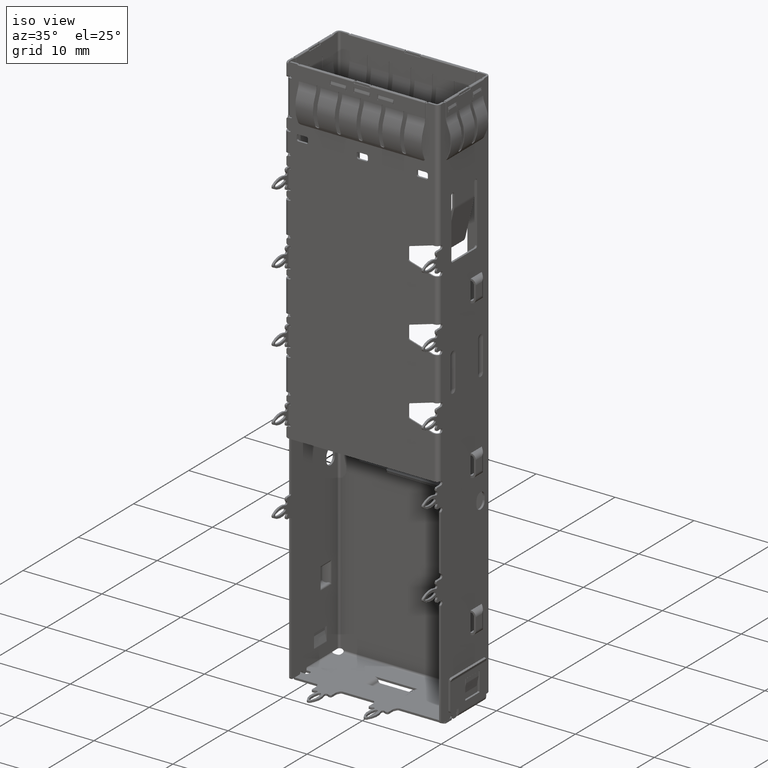
[diagram: clean part render]
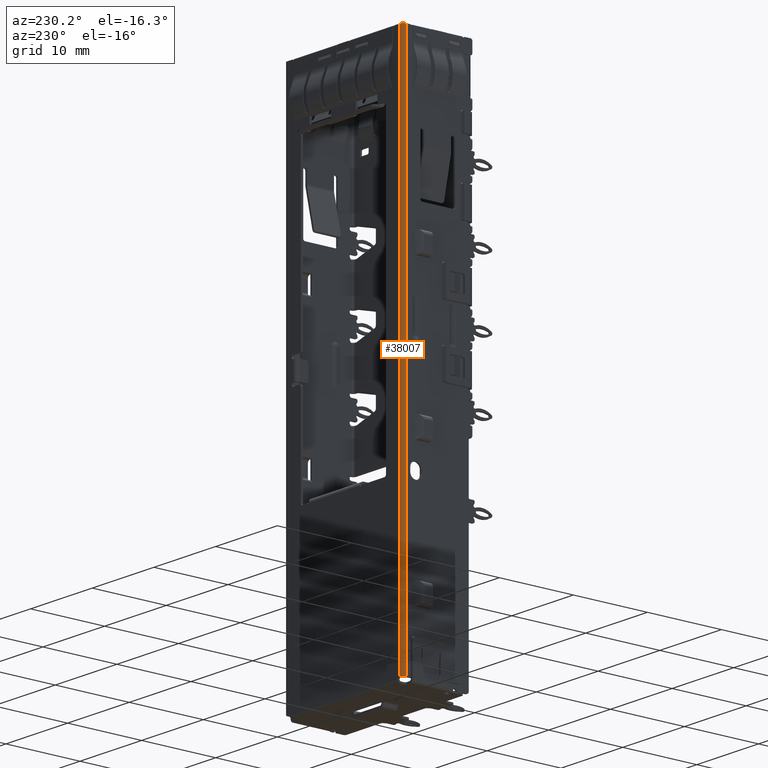
[diagram: tour spotlight — one face highlighted and labeled with its STEP entity id]
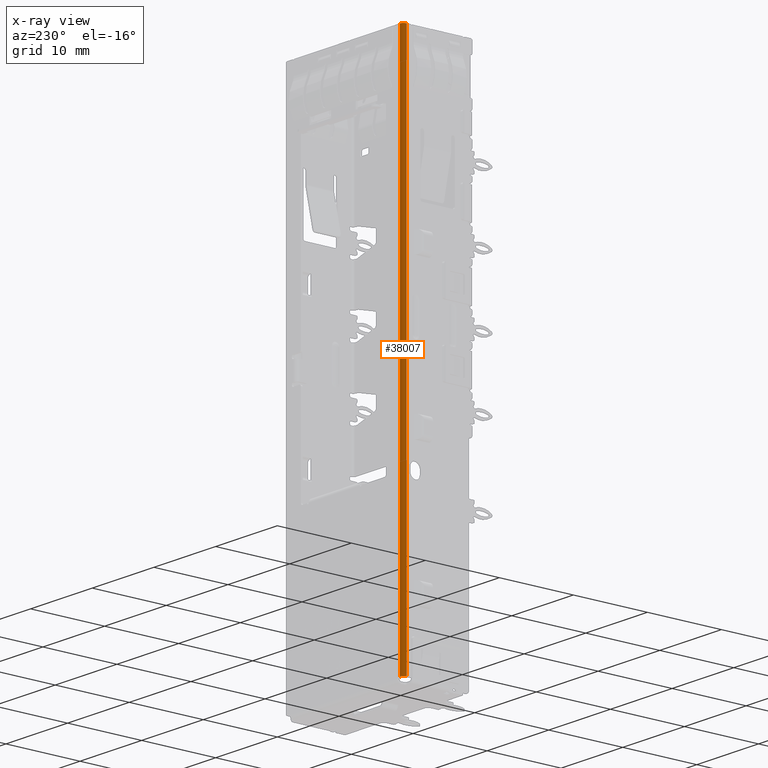
[diagram: x-ray of the same camera — body ghosted, this tour face saturated]
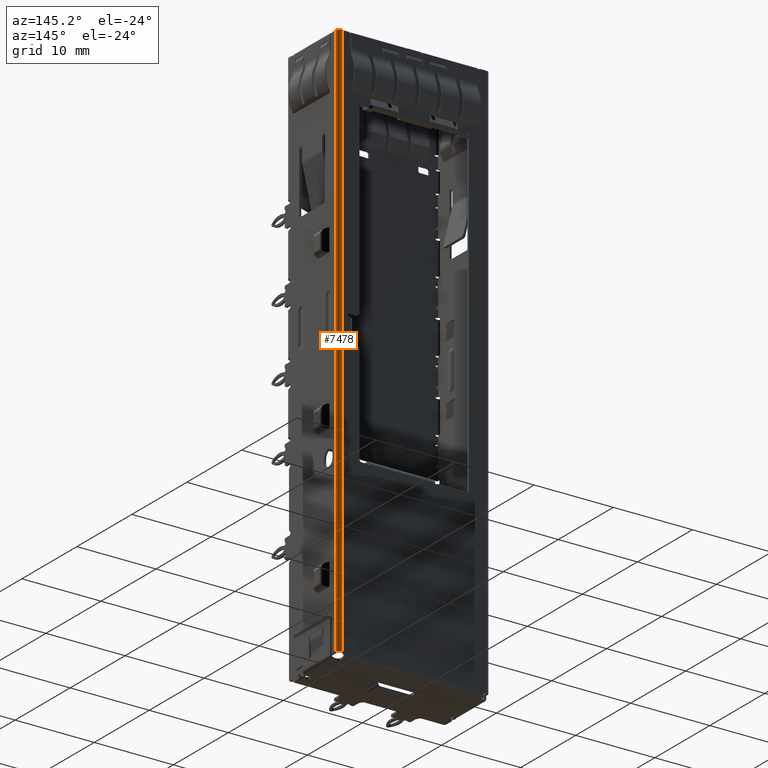
[diagram: tour spotlight — one face highlighted and labeled with its STEP entity id]
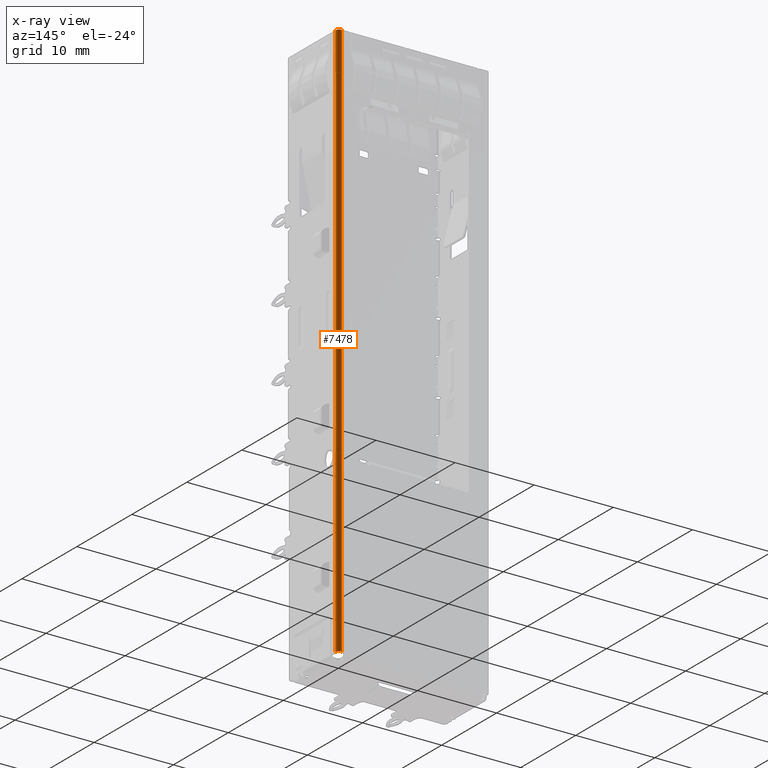
[diagram: x-ray of the same camera — body ghosted, this tour face saturated]
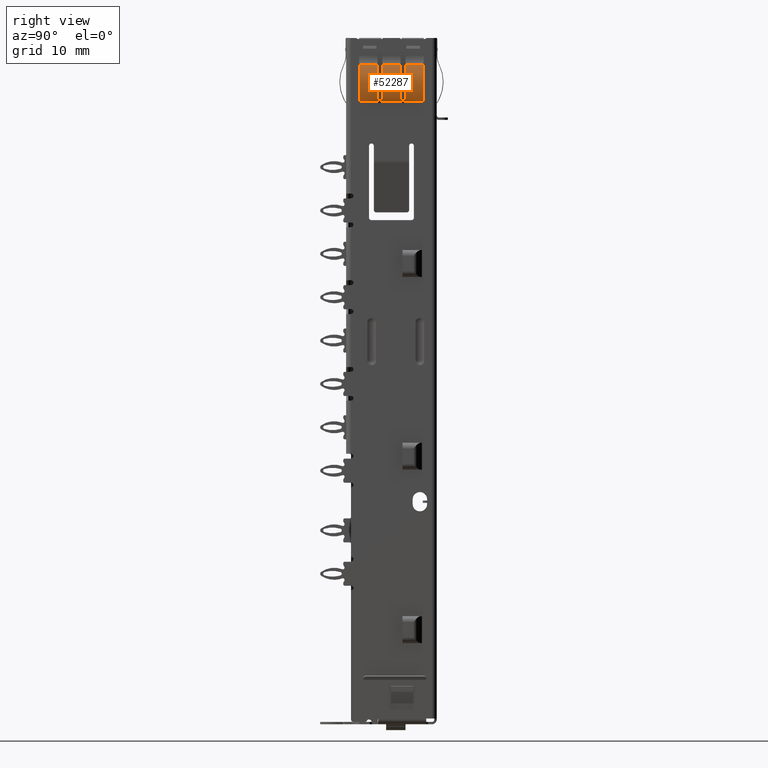
[diagram: tour spotlight — one face highlighted and labeled with its STEP entity id]
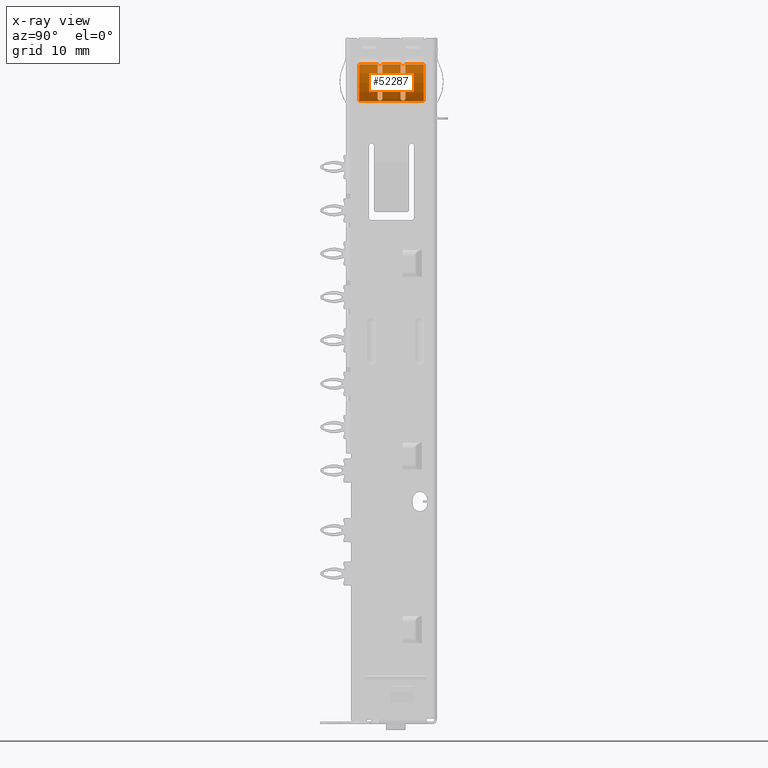
[diagram: x-ray of the same camera — body ghosted, this tour face saturated]
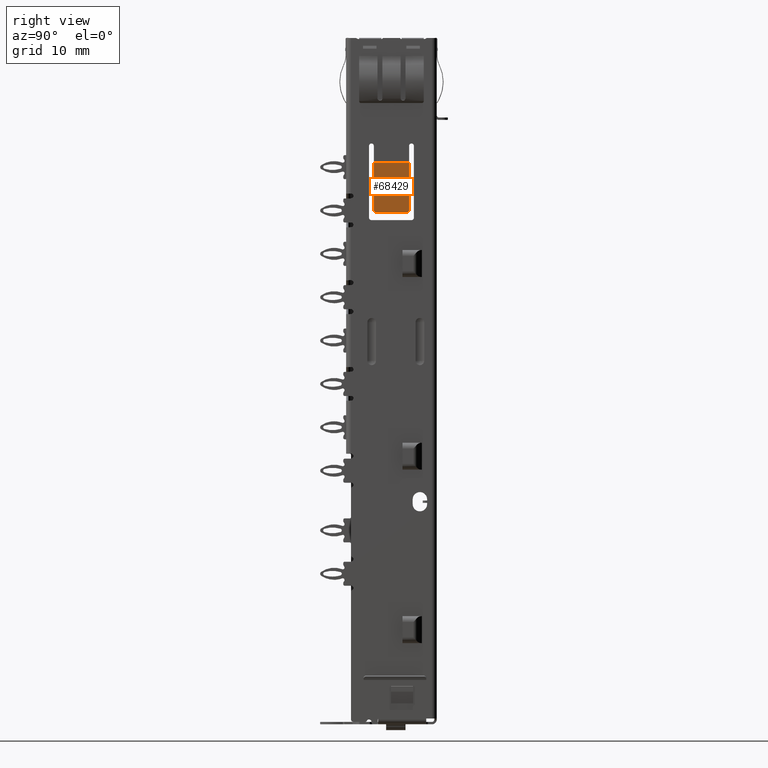
[diagram: tour spotlight — one face highlighted and labeled with its STEP entity id]
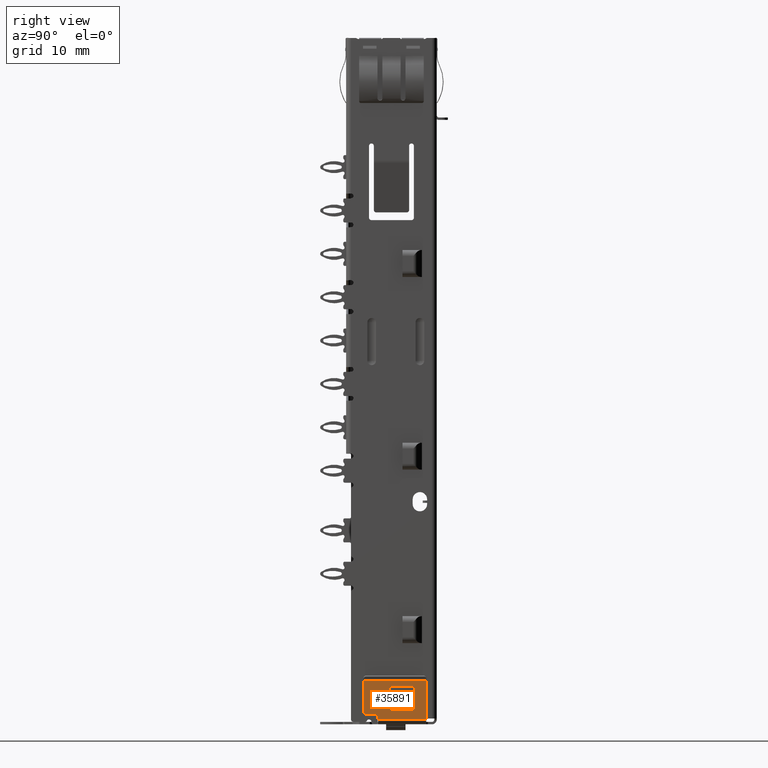
[diagram: tour spotlight — one face highlighted and labeled with its STEP entity id]
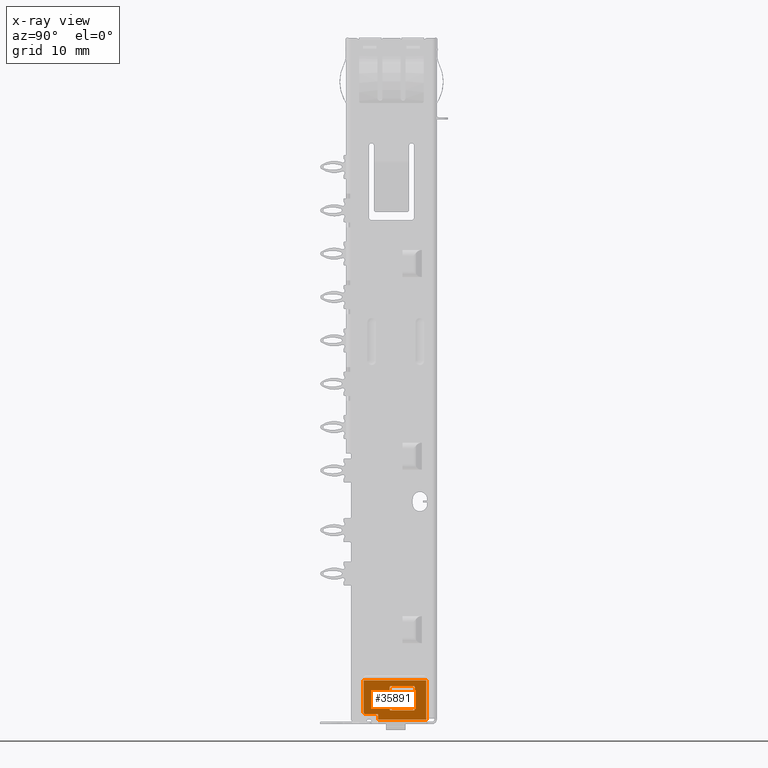
[diagram: x-ray of the same camera — body ghosted, this tour face saturated]
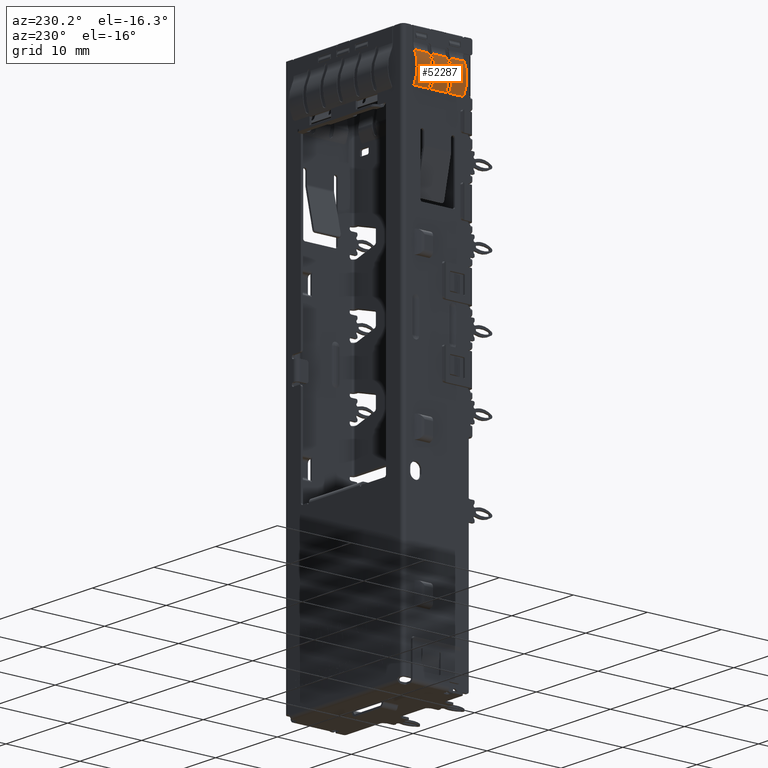
[diagram: tour spotlight — one face highlighted and labeled with its STEP entity id]
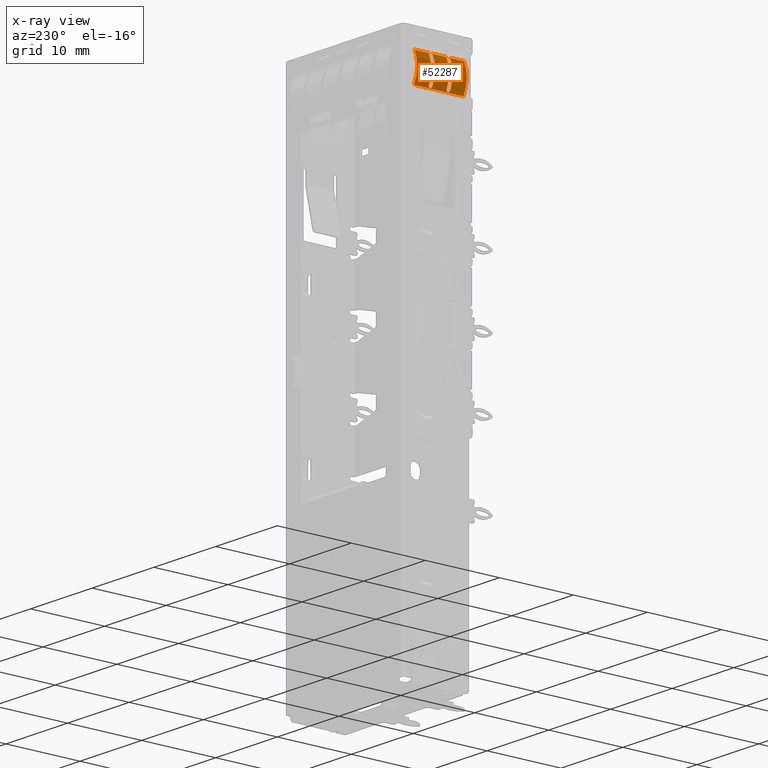
[diagram: x-ray of the same camera — body ghosted, this tour face saturated]
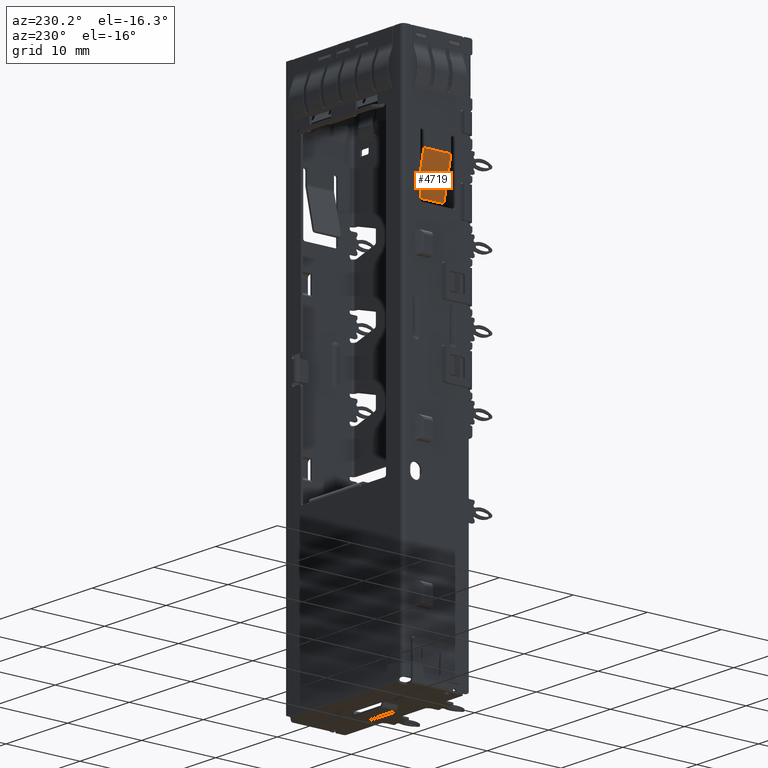
[diagram: tour spotlight — one face highlighted and labeled with its STEP entity id]
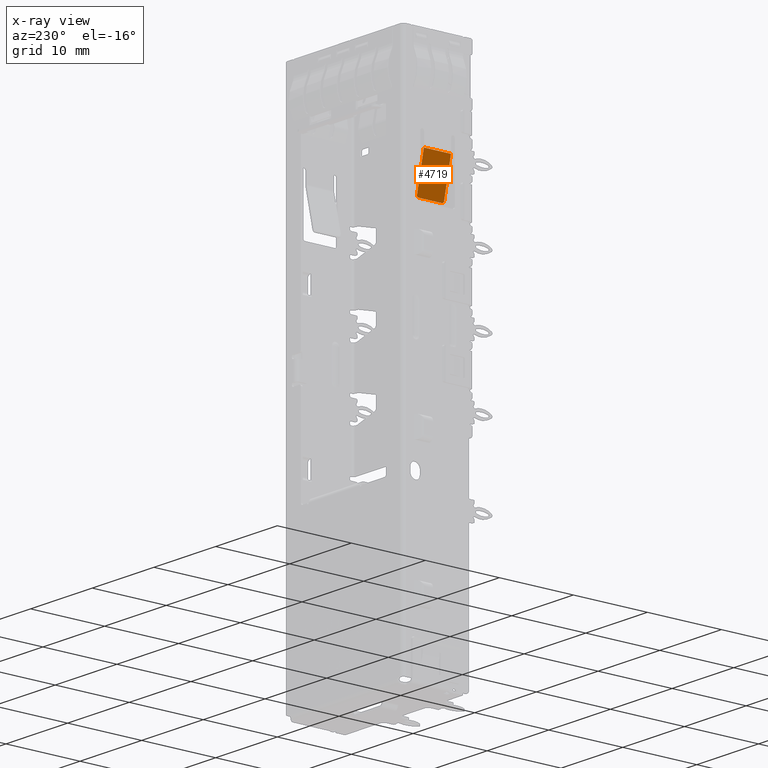
[diagram: x-ray of the same camera — body ghosted, this tour face saturated]
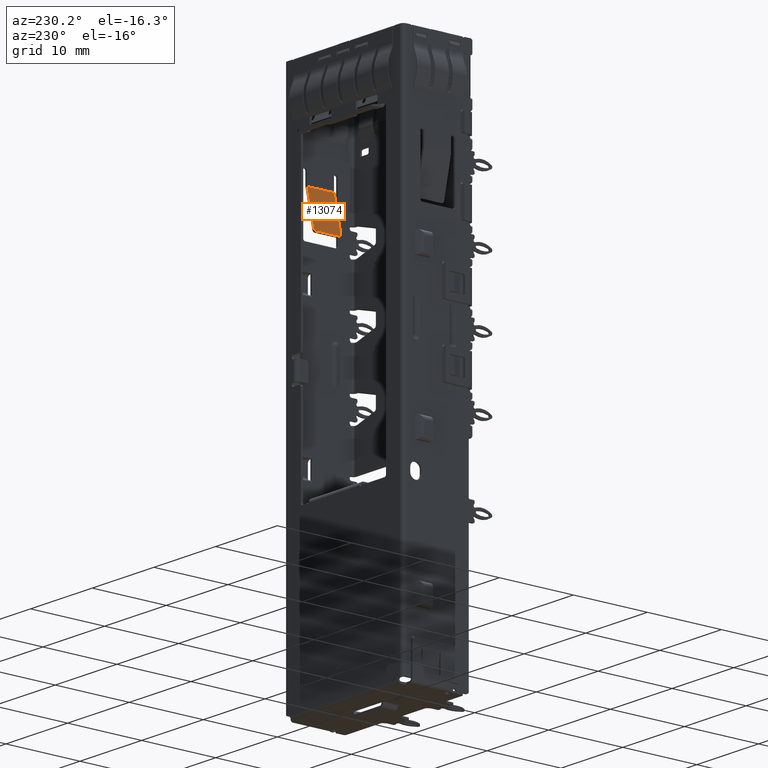
[diagram: tour spotlight — one face highlighted and labeled with its STEP entity id]
A machine part: a face-by-face anatomy tour. The part has 2469 B-rep faces; the first image is the clean iso view, then the 8 largest visible faces are spotlighted one at a time (largest first), each with its STEP entity span.

Face 1 — auxiliary view, entity #38007. An x-ray twin of the same camera follows (body ghosted, this face saturated) — the face is partly hidden behind the body. In plain terms, the highlighted cylindrical surface (edge-blend (fillet) strip) has radius 0.5 mm, axis along (0, 0, -1).
Definition (entity closure, byte-faithful):
#2177 = FACE_OUTER_BOUND ( 'NONE', #35029, .T. ) ;
#3145 = EDGE_CURVE ( 'NONE', #12296, #39849, #25817, .T. ) ;
#5372 = AXIS2_PLACEMENT_3D ( 'NONE', #36842, #52615, #21022 ) ;
#7729 = DIRECTION ( 'NONE',  ( 0.0000000000000000000, 0.0000000000000000000, -1.000000000000000000 ) ) ;
#10909 = VECTOR ( 'NONE', #31495, 1000.000000000000000 ) ;
#12296 = VERTEX_POINT ( 'NONE', #46716 ) ;
#12490 = EDGE_CURVE ( 'NONE', #52726, #45562, #64265, .T. ) ;
#20410 = ORIENTED_EDGE ( 'NONE', *, *, #69083, .T. ) ;
#20636 = ORIENTED_EDGE ( 'NONE', *, *, #3145, .T. ) ;
#21022 = DIRECTION ( 'NONE',  ( -1.000000000000000000, 0.0000000000000000000, 0.0000000000000000000 ) ) ;
#22786 = DIRECTION ( 'NONE',  ( 0.0000000000000000000, 0.0000000000000000000, 1.000000000000000000 ) ) ;
#23011 = CARTESIAN_POINT ( 'NONE',  ( -9.125000000000000000, 9.400000000000000355, -70.96999999999999886 ) ) ;
#23856 = DIRECTION ( 'NONE',  ( 0.0000000000000000000, 0.0000000000000000000, -1.000000000000000000 ) ) ;
#25817 = LINE ( 'NONE', #26393, #10909 ) ;
#26393 = CARTESIAN_POINT ( 'NONE',  ( -9.625000000000000000, 8.900000000000000355, -70.96999999999999886 ) ) ;
#28729 = DIRECTION ( 'NONE',  ( -1.000000000000000000, 0.0000000000000000000, 0.0000000000000000000 ) ) ;
#31495 = DIRECTION ( 'NONE',  ( 0.0000000000000000000, 0.0000000000000000000, 1.000000000000000000 ) ) ;
#35029 = EDGE_LOOP ( 'NONE', ( #58235, #51872, #20636, #20410 ) ) ;
#36842 = CARTESIAN_POINT ( 'NONE',  ( -9.125000000000000000, 8.900000000000000355, -70.62000000000000455 ) ) ;
#38007 = ADVANCED_FACE ( 'NONE', ( #2177 ), #43834, .T. ) ;
#39849 = VERTEX_POINT ( 'NONE', #47418 ) ;
#43834 = CYLINDRICAL_SURFACE ( 'NONE', #47121, 0.5000000000000004441 ) ;
#45039 = DIRECTION ( 'NONE',  ( -1.000000000000000000, 0.0000000000000000000, 0.0000000000000000000 ) ) ;
#45562 = VERTEX_POINT ( 'NONE', #47131 ) ;
#45914 = CIRCLE ( 'NONE', #5372, 0.5000000000000004441 ) ;
#46716 = CARTESIAN_POINT ( 'NONE',  ( -9.625000000000000000, 8.900000000000000355, -70.62000000000000455 ) ) ;
#47121 = AXIS2_PLACEMENT_3D ( 'NONE', #60882, #23856, #28729 ) ;
#47131 = CARTESIAN_POINT ( 'NONE',  ( -9.125000000000000000, 9.400000000000000355, 0.0000000000000000000 ) ) ;
#47418 = CARTESIAN_POINT ( 'NONE',  ( -9.625000000000000000, 8.900000000000000355, 0.0000000000000000000 ) ) ;
#50656 = CARTESIAN_POINT ( 'NONE',  ( -9.125000000000000000, 8.900000000000000355, 0.0000000000000000000 ) ) ;
#50995 = EDGE_CURVE ( 'NONE', #52726, #12296, #45914, .T. ) ;
#51872 = ORIENTED_EDGE ( 'NONE', *, *, #50995, .T. ) ;
#52615 = DIRECTION ( 'NONE',  ( 0.0000000000000000000, 0.0000000000000000000, 1.000000000000000000 ) ) ;
#52726 = VERTEX_POINT ( 'NONE', #66176 ) ;
#55857 = VECTOR ( 'NONE', #22786, 1000.000000000000000 ) ;
#58235 = ORIENTED_EDGE ( 'NONE', *, *, #12490, .F. ) ;
#60882 = CARTESIAN_POINT ( 'NONE',  ( -9.125000000000000000, 8.900000000000000355, 86.20946249067560530 ) ) ;
#61285 = AXIS2_PLACEMENT_3D ( 'NONE', #50656, #7729, #45039 ) ;
#64265 = LINE ( 'NONE', #23011, #55857 ) ;
#66176 = CARTESIAN_POINT ( 'NONE',  ( -9.125000000000000000, 9.400000000000000355, -70.62000000000000455 ) ) ;
#69019 = CIRCLE ( 'NONE', #61285, 0.5000000000000004441 ) ;
#69083 = EDGE_CURVE ( 'NONE', #39849, #45562, #69019, .T. ) ;

Face 2 — auxiliary view, entity #7478. An x-ray twin of the same camera follows (body ghosted, this face saturated) — the face is partly hidden behind the body. In plain terms, the highlighted cylindrical surface (edge-blend (fillet) strip) has radius 0.5 mm, axis along (0, 0, 1).
Definition (entity closure, byte-faithful):
#644 = CIRCLE ( 'NONE', #69286, 0.5000000000000004441 ) ;
#1254 = CIRCLE ( 'NONE', #30928, 0.5000000000000004441 ) ;
#5029 = CARTESIAN_POINT ( 'NONE',  ( 9.125000000000000000, 8.900000000000000355, -70.62000000000000455 ) ) ;
#5038 = EDGE_CURVE ( 'NONE', #45871, #39372, #37321, .T. ) ;
#7478 = ADVANCED_FACE ( 'NONE', ( #30313 ), #17063, .T. ) ;
#10084 = VERTEX_POINT ( 'NONE', #59479 ) ;
#12092 = DIRECTION ( 'NONE',  ( 0.0000000000000000000, 0.0000000000000000000, 1.000000000000000000 ) ) ;
#12147 = ORIENTED_EDGE ( 'NONE', *, *, #5038, .F. ) ;
#13263 = CARTESIAN_POINT ( 'NONE',  ( 9.625000000000000000, 8.900000000000000355, -70.96999999999999886 ) ) ;
#14823 = DIRECTION ( 'NONE',  ( 0.0000000000000000000, 0.0000000000000000000, -1.000000000000000000 ) ) ;
#15846 = CARTESIAN_POINT ( 'NONE',  ( 9.125000000000000000, 8.900000000000000355, -167.3809210697835113 ) ) ;
#16024 = VERTEX_POINT ( 'NONE', #23048 ) ;
#17063 = CYLINDRICAL_SURFACE ( 'NONE', #55817, 0.5000000000000004441 ) ;
#19553 = EDGE_CURVE ( 'NONE', #16024, #39372, #1254, .T. ) ;
#20882 = CARTESIAN_POINT ( 'NONE',  ( 9.625000000000000000, 8.900000000000000355, 0.0000000000000000000 ) ) ;
#21070 = DIRECTION ( 'NONE',  ( 0.0000000000000000000, 0.0000000000000000000, 1.000000000000000000 ) ) ;
#23048 = CARTESIAN_POINT ( 'NONE',  ( 9.125000000000000000, 9.400000000000000355, 0.0000000000000000000 ) ) ;
#25977 = DIRECTION ( 'NONE',  ( 1.000000000000000000, 0.0000000000000000000, 0.0000000000000000000 ) ) ;
#28635 = CARTESIAN_POINT ( 'NONE',  ( 9.625000000000000000, 8.900000000000000355, -70.62000000000000455 ) ) ;
#30313 = FACE_OUTER_BOUND ( 'NONE', #37737, .T. ) ;
#30928 = AXIS2_PLACEMENT_3D ( 'NONE', #57392, #14823, #41629 ) ;
#31426 = VECTOR ( 'NONE', #39116, 1000.000000000000000 ) ;
#36119 = ORIENTED_EDGE ( 'NONE', *, *, #47661, .T. ) ;
#36356 = EDGE_CURVE ( 'NONE', #10084, #16024, #60004, .T. ) ;
#36581 = ORIENTED_EDGE ( 'NONE', *, *, #19553, .T. ) ;
#37321 = LINE ( 'NONE', #13263, #31426 ) ;
#37737 = EDGE_LOOP ( 'NONE', ( #36119, #53880, #36581, #12147 ) ) ;
#39116 = DIRECTION ( 'NONE',  ( 0.0000000000000000000, 0.0000000000000000000, 1.000000000000000000 ) ) ;
#39372 = VERTEX_POINT ( 'NONE', #20882 ) ;
#41506 = DIRECTION ( 'NONE',  ( 1.000000000000000000, 0.0000000000000000000, 0.0000000000000000000 ) ) ;
#41629 = DIRECTION ( 'NONE',  ( 1.000000000000000000, -1.040834085586083310E-14, 0.0000000000000000000 ) ) ;
#45690 = VECTOR ( 'NONE', #12092, 1000.000000000000000 ) ;
#45871 = VERTEX_POINT ( 'NONE', #28635 ) ;
#47661 = EDGE_CURVE ( 'NONE', #45871, #10084, #644, .T. ) ;
#53880 = ORIENTED_EDGE ( 'NONE', *, *, #36356, .T. ) ;
#53963 = CARTESIAN_POINT ( 'NONE',  ( 9.125000000000000000, 9.400000000000000355, -70.96999999999999886 ) ) ;
#55817 = AXIS2_PLACEMENT_3D ( 'NONE', #15846, #68294, #41506 ) ;
#57392 = CARTESIAN_POINT ( 'NONE',  ( 9.125000000000000000, 8.900000000000000355, 0.0000000000000000000 ) ) ;
#59479 = CARTESIAN_POINT ( 'NONE',  ( 9.125000000000000000, 9.400000000000000355, -70.62000000000000455 ) ) ;
#60004 = LINE ( 'NONE', #53963, #45690 ) ;
#68294 = DIRECTION ( 'NONE',  ( 0.0000000000000000000, 0.0000000000000000000, 1.000000000000000000 ) ) ;
#69286 = AXIS2_PLACEMENT_3D ( 'NONE', #5029, #21070, #25977 ) ;

Face 3 — right view, entity #52287. An x-ray twin of the same camera follows (body ghosted, this face saturated) — the face is partly hidden behind the body. In plain terms, the highlighted cylindrical surface (partial cylindrical patch) has radius 4.0153 mm, axis along (0, -1, -0).
Definition (entity closure, byte-faithful):
#4 = CARTESIAN_POINT ( 'NONE',  ( -0.9499999999999999556, 0.2575202760323385132, -6.270339292082519833 ) ) ;
#230 = VERTEX_POINT ( 'NONE', #45721 ) ;
#1586 = ORIENTED_EDGE ( 'NONE', *, *, #49344, .T. ) ;
#1746 = VERTEX_POINT ( 'NONE', #12647 ) ;
#2349 = AXIS2_PLACEMENT_3D ( 'NONE', #50188, #40343, #50890 ) ;
#2449 = DIRECTION ( 'NONE',  ( -1.000000000000000000, -2.637408174477389798E-17, -2.338996274856710146E-16 ) ) ;
#2891 = DIRECTION ( 'NONE',  ( -1.000000000000000000, -2.637408174477389798E-17, -2.338996274856710146E-16 ) ) ;
#3106 = CARTESIAN_POINT ( 'NONE',  ( 3.350000000000000089, 0.2127902748194699933, -2.757708971894639483 ) ) ;
#3191 = CARTESIAN_POINT ( 'NONE',  ( 0.9499999999999999556, -3.375312500000014815, -4.559999999999999609 ) ) ;
#3429 = DIRECTION ( 'NONE',  ( 1.000000000000000000, 2.637408174477349739E-17, -2.430151962610525130E-16 ) ) ;
#3858 = EDGE_CURVE ( 'NONE', #23198, #12829, #37545, .T. ) ;
#4206 = ORIENTED_EDGE ( 'NONE', *, *, #18628, .F. ) ;
#4450 = VERTEX_POINT ( 'NONE', #48426 ) ;
#5333 = CARTESIAN_POINT ( 'NONE',  ( -1.449999999999999956, 0.2575202760323385132, -6.270339292082510951 ) ) ;
#5569 = CARTESIAN_POINT ( 'NONE',  ( -1.447510947755885624, 0.2417618852748329716, -6.303476762293392710 ) ) ;
#5836 = DIRECTION ( 'NONE',  ( 2.430151962610525623E-16, 8.640540311504090446E-16, 1.000000000000000000 ) ) ;
#5894 = AXIS2_PLACEMENT_3D ( 'NONE', #24511, #62010, #56835 ) ;
#6301 = CARTESIAN_POINT ( 'NONE',  ( -0.9499999999999999556, -3.375312500000014815, -4.559999999999999609 ) ) ;
#6413 = ORIENTED_EDGE ( 'NONE', *, *, #59572, .F. ) ;
#6519 = CARTESIAN_POINT ( 'NONE',  ( -3.350000000000000089, 0.1102179602496533989, -6.553442219711419270 ) ) ;
#8638 = CARTESIAN_POINT ( 'NONE',  ( 3.350000000000000089, 0.1102179602496567989, -6.553442219711409500 ) ) ;
#8662 = CARTESIAN_POINT ( 'NONE',  ( 1.447871414502068355, 0.2269733755640368500, -6.335222196744236811 ) ) ;
#9124 = CARTESIAN_POINT ( 'NONE',  ( 0.9624268916681675279, 0.2225746253904217764, -6.342746775596753039 ) ) ;
#9305 = CARTESIAN_POINT ( 'NONE',  ( 3.350000000000000089, 0.1102179602496586031, -6.553442219711409500 ) ) ;
#10853 = DIRECTION ( 'NONE',  ( 2.160135077876022611E-16, 8.640540311504090446E-16, 1.000000000000000000 ) ) ;
#10953 = CARTESIAN_POINT ( 'NONE',  ( -1.400821993775618557, 0.1893945002684858381, -6.408292812851599685 ) ) ;
#11309 = EDGE_CURVE ( 'NONE', #42696, #67362, #27564, .T. ) ;
#11455 = CARTESIAN_POINT ( 'NONE',  ( 0.9499999999999999556, 0.2575202760323365148, -6.270339292082519833 ) ) ;
#12647 = CARTESIAN_POINT ( 'NONE',  ( -0.9499999999999999556, 0.2575202760323385132, -6.270339292082519833 ) ) ;
#12829 = VERTEX_POINT ( 'NONE', #58318 ) ;
#13702 = LINE ( 'NONE', #9305, #65586 ) ;
#13758 = EDGE_LOOP ( 'NONE', ( #61756, #21517, #23994, #6413, #60152, #1586, #64492, #42172, #34330, #44020, #22370, #4206 ) ) ;
#13802 = LINE ( 'NONE', #34722, #61534 ) ;
#13899 = CIRCLE ( 'NONE', #43588, 4.015312499999985185 ) ;
#13999 = CARTESIAN_POINT ( 'NONE',  ( 0.9991780062258855954, 0.1893945002684731260, -6.408292812851624554 ) ) ;
#14027 = EDGE_CURVE ( 'NONE', #230, #1746, #57350, .T. ) ;
#14911 = CARTESIAN_POINT ( 'NONE',  ( 1.133643529415945483, 0.1470798920624655781, -6.487562267202802602 ) ) ;
#15572 = CARTESIAN_POINT ( 'NONE',  ( -1.266356470581992744, 0.1470798920624469819, -6.487562267202836352 ) ) ;
#15949 = CARTESIAN_POINT ( 'NONE',  ( -1.449999999999999956, -3.375312500000014815, -4.559999999999999609 ) ) ;
#18003 = CIRCLE ( 'NONE', #2349, 4.015312499999985185 ) ;
#18628 = EDGE_CURVE ( 'NONE', #12829, #4450, #38029, .T. ) ;
#19689 = CARTESIAN_POINT ( 'NONE',  ( 3.350000000000000089, 0.2127902748194580029, -2.757708971894649697 ) ) ;
#20261 = CARTESIAN_POINT ( 'NONE',  ( 1.183850392134083718, 0.1432321234569693125, -6.494574431467863285 ) ) ;
#20880 = VECTOR ( 'NONE', #2449, 1000.000000000000000 ) ;
#20924 = CARTESIAN_POINT ( 'NONE',  ( -1.135343758811134807, 0.1428474767557116332, -6.495273949204166897 ) ) ;
#21384 = CARTESIAN_POINT ( 'NONE',  ( -1.234187117483951823, 0.1440416960690880099, -6.493103851378515756 ) ) ;
#21517 = ORIENTED_EDGE ( 'NONE', *, *, #38743, .T. ) ;
#22006 = DIRECTION ( 'NONE',  ( 1.000000000000000000, 2.637408174477354977E-17, -2.160135077876025077E-16 ) ) ;
#22370 = ORIENTED_EDGE ( 'NONE', *, *, #29750, .T. ) ;
#22523 = EDGE_CURVE ( 'NONE', #230, #42696, #27441, .T. ) ;
#23198 = VERTEX_POINT ( 'NONE', #11455 ) ;
#23994 = ORIENTED_EDGE ( 'NONE', *, *, #52983, .T. ) ;
#24511 = CARTESIAN_POINT ( 'NONE',  ( -19.23101843902509955, -3.375312500000014815, -4.559999999999999609 ) ) ;
#24692 = CARTESIAN_POINT ( 'NONE',  ( 0.9817573592979648156, 0.2016334126514719438, -6.384600189576042695 ) ) ;
#24903 = VERTEX_POINT ( 'NONE', #59021 ) ;
#25142 = CARTESIAN_POINT ( 'NONE',  ( 0.9499999999999999556, 0.2575202760323365148, -6.270339292082519833 ) ) ;
#26745 = CARTESIAN_POINT ( 'NONE',  ( -1.069891355745449024, 0.1562188122754727682, -6.471342872836561178 ) ) ;
#26982 = DIRECTION ( 'NONE',  ( 1.000000000000000000, 2.637408174477354977E-17, -2.160135077876025077E-16 ) ) ;
#27441 = CIRCLE ( 'NONE', #42293, 4.015312499999985185 ) ;
#27564 = LINE ( 'NONE', #56365, #20880 ) ;
#29750 = EDGE_CURVE ( 'NONE', #1746, #4450, #13899, .T. ) ;
#29782 = FACE_OUTER_BOUND ( 'NONE', #13758, .T. ) ;
#30846 = DIRECTION ( 'NONE',  ( -1.000000000000000000, -2.637408174477389798E-17, -2.338996274856710146E-16 ) ) ;
#31375 = CIRCLE ( 'NONE', #66333, 4.015312499999985185 ) ;
#31612 = CARTESIAN_POINT ( 'NONE',  ( -0.9521285854981350605, 0.2269733755614199988, -6.335222196749795920 ) ) ;
#32551 = CARTESIAN_POINT ( 'NONE',  ( -1.448896241133398322, 0.2483748786860847657, -6.289764501678673625 ) ) ;
#34330 = ORIENTED_EDGE ( 'NONE', *, *, #22523, .F. ) ;
#34356 = DIRECTION ( 'NONE',  ( 2.430151962610525623E-16, 8.640540311504090446E-16, 1.000000000000000000 ) ) ;
#34722 = CARTESIAN_POINT ( 'NONE',  ( 3.350000000000000089, 0.2127902748194580029, -2.757708971894649697 ) ) ;
#35124 = AXIS2_PLACEMENT_3D ( 'NONE', #38707, #48817, #54942 ) ;
#35447 = VECTOR ( 'NONE', #30846, 1000.000000000000000 ) ;
#36259 = CARTESIAN_POINT ( 'NONE',  ( 1.449999999999999956, 0.2127902748194699933, -2.757708971894639483 ) ) ;
#36284 = CARTESIAN_POINT ( 'NONE',  ( 1.330108644254346606, 0.1562188122726120287, -6.471342872841999494 ) ) ;
#37461 = CARTESIAN_POINT ( 'NONE',  ( 1.449999999999999956, -3.375312500000014815, -4.559999999999999609 ) ) ;
#37545 = CIRCLE ( 'NONE', #60670, 4.015312499999985185 ) ;
#37694 = CARTESIAN_POINT ( 'NONE',  ( -1.442208158622817482, 0.2292715014953297936, -6.329155873695783363 ) ) ;
#38029 = LINE ( 'NONE', #19689, #35447 ) ;
#38707 = CARTESIAN_POINT ( 'NONE',  ( 3.350000000000000089, -3.375312500000014815, -4.559999999999999609 ) ) ;
#38743 = EDGE_CURVE ( 'NONE', #23198, #24903, #41971, .T. ) ;
#39864 = CYLINDRICAL_SURFACE ( 'NONE', #5894, 4.015312499999985185 ) ;
#40343 = DIRECTION ( 'NONE',  ( 1.000000000000000000, 2.637408174477354977E-17, -2.160135077876025077E-16 ) ) ;
#40571 = CARTESIAN_POINT ( 'NONE',  ( 1.423467426253351098, 0.2000050275717393800, -6.388127338060489713 ) ) ;
#41297 = VERTEX_POINT ( 'NONE', #8638 ) ;
#41971 = B_SPLINE_CURVE_WITH_KNOTS ( 'NONE', 3,
 ( #25142, #46654, #62642, #46196, #9124, #24692, #13999, #52082, #62872, #46891, #14911, #52305, #20261, #63108, #36284, #40571, #8662, #45966 ),
 .UNSPECIFIED., .F., .F.,
 ( 4, 2, 2, 2, 2, 2, 2, 2, 4 ),
 ( 0.0000000000000000000, 0.06249999999999983347, 0.1249999999999996669, 0.2499999999999991673, 0.3749999999999981126, 0.4374999999999979461, 0.4999999999999977796, 0.7499999999999988898, 1.000000000000000000 ),
 .UNSPECIFIED. ) ;
#42161 = CARTESIAN_POINT ( 'NONE',  ( -1.418242640700781543, 0.2016334126503094293, -6.384600189578379492 ) ) ;
#42172 = ORIENTED_EDGE ( 'NONE', *, *, #11309, .F. ) ;
#42293 = AXIS2_PLACEMENT_3D ( 'NONE', #15949, #22006, #10853 ) ;
#42401 = CARTESIAN_POINT ( 'NONE',  ( -1.281764705020843609, 0.1493145950040851988, -6.483480206780200206 ) ) ;
#42696 = VERTEX_POINT ( 'NONE', #54592 ) ;
#43588 = AXIS2_PLACEMENT_3D ( 'NONE', #6301, #64730, #5836 ) ;
#43886 = VERTEX_POINT ( 'NONE', #3106 ) ;
#44020 = ORIENTED_EDGE ( 'NONE', *, *, #14027, .T. ) ;
#45721 = CARTESIAN_POINT ( 'NONE',  ( -1.449999999999999956, 0.2575202760323385132, -6.270339292082510951 ) ) ;
#45966 = CARTESIAN_POINT ( 'NONE',  ( 1.449999999999999956, 0.2575202760323385132, -6.270339292082510951 ) ) ;
#46196 = CARTESIAN_POINT ( 'NONE',  ( 0.9577918413768656825, 0.2292715014959322839, -6.329155873694533696 ) ) ;
#46604 = DIRECTION ( 'NONE',  ( -1.000000000000000000, -2.637408174477389798E-17, -2.338996274856710146E-16 ) ) ;
#46654 = CARTESIAN_POINT ( 'NONE',  ( 0.9511037588666657605, 0.2483748786854149959, -6.289764501680096487 ) ) ;
#46891 = CARTESIAN_POINT ( 'NONE',  ( 1.118235294976907879, 0.1493145950041056269, -6.483480206780164679 ) ) ;
#47550 = CARTESIAN_POINT ( 'NONE',  ( -1.325960082006894192, 0.1581244498614347294, -6.467277893290436452 ) ) ;
#48165 = CIRCLE ( 'NONE', #35124, 4.015312499999985185 ) ;
#48244 = CARTESIAN_POINT ( 'NONE',  ( -1.216149607866466198, 0.1432321234569693125, -6.494574431467862397 ) ) ;
#48426 = CARTESIAN_POINT ( 'NONE',  ( -0.9499999999999999556, 0.2127902748194565041, -2.757708971894649697 ) ) ;
#48817 = DIRECTION ( 'NONE',  ( -1.000000000000000000, -2.637408174476914941E-17, 2.160135077876025077E-16 ) ) ;
#49344 = EDGE_CURVE ( 'NONE', #41297, #68478, #13702, .T. ) ;
#50188 = CARTESIAN_POINT ( 'NONE',  ( -3.350000000000000089, -3.375312500000014815, -4.559999999999999609 ) ) ;
#50890 = DIRECTION ( 'NONE',  ( 2.160135077876022611E-16, 8.640540311504090446E-16, 1.000000000000000000 ) ) ;
#52082 = CARTESIAN_POINT ( 'NONE',  ( 1.047282101774917207, 0.1668143807774621623, -6.451205827052084452 ) ) ;
#52287 = ADVANCED_FACE ( 'NONE', ( #29782 ), #39864, .T. ) ;
#52305 = CARTESIAN_POINT ( 'NONE',  ( 1.165812882514736470, 0.1440416960691005555, -6.493103851378492664 ) ) ;
#52983 = EDGE_CURVE ( 'NONE', #24903, #57898, #31375, .T. ) ;
#53487 = DIRECTION ( 'NONE',  ( 2.160135077876022611E-16, 8.640540311504090446E-16, 1.000000000000000000 ) ) ;
#54082 = EDGE_CURVE ( 'NONE', #68478, #67362, #18003, .T. ) ;
#54331 = CARTESIAN_POINT ( 'NONE',  ( -3.350000000000000089, 0.2127902748194565041, -2.757708971894649697 ) ) ;
#54592 = CARTESIAN_POINT ( 'NONE',  ( -1.449999999999999956, 0.2127902748194699933, -2.757708971894649697 ) ) ;
#54942 = DIRECTION ( 'NONE',  ( 2.160135077876022611E-16, 1.058466188159251055E-14, 1.000000000000000000 ) ) ;
#56365 = CARTESIAN_POINT ( 'NONE',  ( 3.350000000000000089, 0.2127902748194580029, -2.757708971894649697 ) ) ;
#56835 = DIRECTION ( 'NONE',  ( 0.0000000000000000000, 8.640540311504090446E-16, 1.000000000000000000 ) ) ;
#57350 = B_SPLINE_CURVE_WITH_KNOTS ( 'NONE', 3,
 ( #5333, #32551, #5569, #37694, #69172, #42161, #10953, #63774, #47550, #42401, #15572, #21384, #48244, #20924, #26745, #64226, #31612, #4 ),
 .UNSPECIFIED., .F., .F.,
 ( 4, 2, 2, 2, 2, 2, 2, 2, 4 ),
 ( 0.0000000000000000000, 0.06249999999999897304, 0.1249999999999979461, 0.2499999999999982236, 0.3749999999999985012, 0.4374999999999990008, 0.4999999999999995559, 0.7499999999999998890, 1.000000000000000000 ),
 .UNSPECIFIED. ) ;
#57898 = VERTEX_POINT ( 'NONE', #36259 ) ;
#58318 = CARTESIAN_POINT ( 'NONE',  ( 0.9499999999999999556, 0.2127902748194699933, -2.757708971894639483 ) ) ;
#59021 = CARTESIAN_POINT ( 'NONE',  ( 1.449999999999999956, 0.2575202760323385132, -6.270339292082510951 ) ) ;
#59572 = EDGE_CURVE ( 'NONE', #43886, #57898, #13802, .T. ) ;
#60152 = ORIENTED_EDGE ( 'NONE', *, *, #67855, .T. ) ;
#60670 = AXIS2_PLACEMENT_3D ( 'NONE', #3191, #3429, #34356 ) ;
#61534 = VECTOR ( 'NONE', #2891, 1000.000000000000000 ) ;
#61756 = ORIENTED_EDGE ( 'NONE', *, *, #3858, .F. ) ;
#62010 = DIRECTION ( 'NONE',  ( 1.000000000000000000, 2.637408174477369768E-17, -2.278863164946214787E-32 ) ) ;
#62642 = CARTESIAN_POINT ( 'NONE',  ( 0.9524890522445335073, 0.2417618852732668355, -6.303476762296624791 ) ) ;
#62872 = CARTESIAN_POINT ( 'NONE',  ( 1.074039917990856852, 0.1581244498614549909, -6.467277893290398261 ) ) ;
#63108 = CARTESIAN_POINT ( 'NONE',  ( 1.264656241186662644, 0.1428474767557116054, -6.495273949204167785 ) ) ;
#63774 = CARTESIAN_POINT ( 'NONE',  ( -1.352717898223584125, 0.1668143807774493947, -6.451205827052105768 ) ) ;
#64226 = CARTESIAN_POINT ( 'NONE',  ( -0.9765325737468519840, 0.2000050275688786128, -6.388127338065926253 ) ) ;
#64492 = ORIENTED_EDGE ( 'NONE', *, *, #54082, .T. ) ;
#64730 = DIRECTION ( 'NONE',  ( 1.000000000000000000, 2.637408174477349739E-17, -2.430151962610525130E-16 ) ) ;
#65586 = VECTOR ( 'NONE', #46604, 1000.000000000000000 ) ;
#66333 = AXIS2_PLACEMENT_3D ( 'NONE', #37461, #26982, #53487 ) ;
#67362 = VERTEX_POINT ( 'NONE', #54331 ) ;
#67855 = EDGE_CURVE ( 'NONE', #43886, #41297, #48165, .T. ) ;
#68478 = VERTEX_POINT ( 'NONE', #6519 ) ;
#69172 = CARTESIAN_POINT ( 'NONE',  ( -1.437573108333431104, 0.2225746253915676098, -6.342746775594454434 ) ) ;

Face 4 — right view, entity #68429. In plain terms, the highlighted planar face has unit normal (-0.9747, 0, 0.2236).
Definition (entity closure, byte-faithful):
#524 = CARTESIAN_POINT ( 'NONE',  ( 8.474570083757159367, 6.280000000000000249, -17.85632970246630080 ) ) ;
#931 = AXIS2_PLACEMENT_3D ( 'NONE', #524, #64995, #15860 ) ;
#1503 = ORIENTED_EDGE ( 'NONE', *, *, #18668, .T. ) ;
#2209 = VECTOR ( 'NONE', #6612, 1000.000000000000114 ) ;
#6612 = DIRECTION ( 'NONE',  ( -0.2235991448937529047, 0.0000000000000000000, -0.9746811901348986229 ) ) ;
#6810 = CARTESIAN_POINT ( 'NONE',  ( 8.418670297533719094, 6.530000000000000249, -18.10000000000000142 ) ) ;
#7256 = DIRECTION ( 'NONE',  ( 3.388659900573235246E-33, -1.000000000000000000, 5.821219718042979673E-17 ) ) ;
#8556 = CARTESIAN_POINT ( 'NONE',  ( 8.418670297533719094, 2.870000000000000107, -18.10000000000000142 ) ) ;
#8665 = ORIENTED_EDGE ( 'NONE', *, *, #43719, .T. ) ;
#9005 = LINE ( 'NONE', #8556, #20593 ) ;
#11783 = CARTESIAN_POINT ( 'NONE',  ( 9.593351487668599020, 2.870000000000000107, -12.97949893111719888 ) ) ;
#12405 = CARTESIAN_POINT ( 'NONE',  ( 8.418670297533719094, 6.530000000000000249, -18.10000000000000142 ) ) ;
#12564 = ORIENTED_EDGE ( 'NONE', *, *, #18475, .T. ) ;
#12865 = DIRECTION ( 'NONE',  ( 0.9746811901348984009, -1.301619751193062505E-17, -0.2235991448937545978 ) ) ;
#13173 = VERTEX_POINT ( 'NONE', #50497 ) ;
#13446 = CARTESIAN_POINT ( 'NONE',  ( 9.593351487668599020, 6.530000000000000249, -12.97949893111719888 ) ) ;
#14434 = CIRCLE ( 'NONE', #44687, 0.2500000000000001665 ) ;
#15496 = VECTOR ( 'NONE', #18563, 1000.000000000000000 ) ;
#15860 = DIRECTION ( 'NONE',  ( 0.2235991448937545145, 0.0000000000000000000, 0.9746811901348982898 ) ) ;
#17450 = PLANE ( 'NONE',  #28891 ) ;
#18475 = EDGE_CURVE ( 'NONE', #13173, #33084, #19648, .T. ) ;
#18563 = DIRECTION ( 'NONE',  ( 3.388659900573235246E-33, -1.000000000000000000, 5.821219718042979673E-17 ) ) ;
#18668 = EDGE_CURVE ( 'NONE', #34753, #53306, #59895, .T. ) ;
#19565 = VERTEX_POINT ( 'NONE', #46563 ) ;
#19648 = LINE ( 'NONE', #13446, #15496 ) ;
#20593 = VECTOR ( 'NONE', #46084, 1000.000000000000114 ) ;
#22787 = CARTESIAN_POINT ( 'NONE',  ( 8.418670297533719094, 6.530000000000000249, -18.10000000000000142 ) ) ;
#23938 = ORIENTED_EDGE ( 'NONE', *, *, #25655, .F. ) ;
#23989 = EDGE_LOOP ( 'NONE', ( #33547, #8665, #23938, #1503, #50000, #12564 ) ) ;
#24026 = CARTESIAN_POINT ( 'NONE',  ( 8.474570083757159367, 3.120000000000000107, -17.85632970246630080 ) ) ;
#25655 = EDGE_CURVE ( 'NONE', #34753, #19565, #33791, .T. ) ;
#27294 = CARTESIAN_POINT ( 'NONE',  ( 8.474570083757159367, 2.870000000000000107, -17.85632970246630080 ) ) ;
#28891 = AXIS2_PLACEMENT_3D ( 'NONE', #22787, #43829, #38404 ) ;
#33084 = VERTEX_POINT ( 'NONE', #11783 ) ;
#33547 = ORIENTED_EDGE ( 'NONE', *, *, #58262, .T. ) ;
#33791 = LINE ( 'NONE', #6810, #47179 ) ;
#34753 = VERTEX_POINT ( 'NONE', #63106 ) ;
#35079 = CARTESIAN_POINT ( 'NONE',  ( 8.474570083757159367, 6.530000000000000249, -17.85632970246630080 ) ) ;
#38395 = VERTEX_POINT ( 'NONE', #27294 ) ;
#38404 = DIRECTION ( 'NONE',  ( 1.335431281907589894E-17, 1.000000000000000000, 0.0000000000000000000 ) ) ;
#43719 = EDGE_CURVE ( 'NONE', #38395, #19565, #14434, .T. ) ;
#43829 = DIRECTION ( 'NONE',  ( -0.9746811901348987339, 1.301619751193063121E-17, 0.2235991448937529325 ) ) ;
#44687 = AXIS2_PLACEMENT_3D ( 'NONE', #24026, #12865, #50221 ) ;
#46084 = DIRECTION ( 'NONE',  ( -0.2235991448937529047, 0.0000000000000000000, -0.9746811901348986229 ) ) ;
#46563 = CARTESIAN_POINT ( 'NONE',  ( 8.418670297533719094, 3.120000000000000107, -18.10000000000000142 ) ) ;
#47179 = VECTOR ( 'NONE', #7256, 1000.000000000000000 ) ;
#50000 = ORIENTED_EDGE ( 'NONE', *, *, #59473, .F. ) ;
#50221 = DIRECTION ( 'NONE',  ( 0.2235991448937545145, 0.0000000000000000000, 0.9746811901348982898 ) ) ;
#50497 = CARTESIAN_POINT ( 'NONE',  ( 9.593351487668599020, 6.530000000000000249, -12.97949893111719888 ) ) ;
#53306 = VERTEX_POINT ( 'NONE', #35079 ) ;
#54785 = LINE ( 'NONE', #12405, #2209 ) ;
#58262 = EDGE_CURVE ( 'NONE', #33084, #38395, #9005, .T. ) ;
#59473 = EDGE_CURVE ( 'NONE', #13173, #53306, #54785, .T. ) ;
#59895 = CIRCLE ( 'NONE', #931, 0.2500000000000001665 ) ;
#61562 = FACE_OUTER_BOUND ( 'NONE', #23989, .T. ) ;
#63106 = CARTESIAN_POINT ( 'NONE',  ( 8.418670297533719094, 6.280000000000000249, -18.10000000000000142 ) ) ;
#64995 = DIRECTION ( 'NONE',  ( 0.9746811901348984009, -1.301619751193062505E-17, -0.2235991448937545978 ) ) ;
#68429 = ADVANCED_FACE ( 'NONE', ( #61562 ), #17450, .F. ) ;

Face 5 — right view, entity #35891. An x-ray twin of the same camera follows (body ghosted, this face saturated) — the face is partly hidden behind the body. In plain terms, the highlighted planar face has unit normal (1, 0, 0).
Definition (entity closure, byte-faithful):
#812 = AXIS2_PLACEMENT_3D ( 'NONE', #55633, #39881, #28877 ) ;
#999 = CARTESIAN_POINT ( 'NONE',  ( 9.879999998725971011, 3.310000001274090220, -70.19404862000000378 ) ) ;
#1412 = AXIS2_PLACEMENT_3D ( 'NONE', #65927, #12804, #38898 ) ;
#1794 = CARTESIAN_POINT ( 'NONE',  ( 9.879999998725940813, 4.610000001274079828, -67.28000000000000114 ) ) ;
#1976 = LINE ( 'NONE', #29141, #33575 ) ;
#2134 = EDGE_CURVE ( 'NONE', #57833, #64074, #47067, .T. ) ;
#2976 = VERTEX_POINT ( 'NONE', #62067 ) ;
#3104 = CIRCLE ( 'NONE', #812, 0.1000000000000028644 ) ;
#3355 = AXIS2_PLACEMENT_3D ( 'NONE', #20473, #26041, #57924 ) ;
#4041 = EDGE_CURVE ( 'NONE', #30005, #30650, #24970, .T. ) ;
#4780 = CARTESIAN_POINT ( 'NONE',  ( 9.879999998725940813, 7.110000001274060288, -69.68000000000000682 ) ) ;
#5115 = ORIENTED_EDGE ( 'NONE', *, *, #43717, .T. ) ;
#5384 = CARTESIAN_POINT ( 'NONE',  ( 9.879999998725960353, 3.310000001274084891, -70.72499999872600540 ) ) ;
#7174 = AXIS2_PLACEMENT_3D ( 'NONE', #46332, #35507, #19478 ) ;
#7850 = VECTOR ( 'NONE', #16579, 1000.000000000000000 ) ;
#11566 = LINE ( 'NONE', #28066, #12341 ) ;
#11744 = EDGE_CURVE ( 'NONE', #68531, #2976, #64363, .T. ) ;
#12099 = EDGE_CURVE ( 'NONE', #2976, #18632, #53406, .T. ) ;
#12341 = VECTOR ( 'NONE', #43781, 1000.000000000000000 ) ;
#12804 = DIRECTION ( 'NONE',  ( 1.000000000000000000, 1.066396681501762007E-17, 0.0000000000000000000 ) ) ;
#13081 = FACE_OUTER_BOUND ( 'NONE', #38104, .T. ) ;
#13864 = EDGE_CURVE ( 'NONE', #60793, #57833, #58206, .T. ) ;
#14354 = CARTESIAN_POINT ( 'NONE',  ( 9.879999998725960353, 4.510000001274070414, -69.68000000000000682 ) ) ;
#15193 = ORIENTED_EDGE ( 'NONE', *, *, #13864, .T. ) ;
#16579 = DIRECTION ( 'NONE',  ( -1.066396681500341904E-17, 1.000000000000000000, -3.502145305658135194E-15 ) ) ;
#17220 = CARTESIAN_POINT ( 'NONE',  ( 9.879999998725960353, 4.610000001274070947, -69.78000000000000114 ) ) ;
#17227 = ORIENTED_EDGE ( 'NONE', *, *, #45530, .F. ) ;
#17982 = DIRECTION ( 'NONE',  ( 0.0000000000000000000, -3.491481338843135327E-15, 1.000000000000000000 ) ) ;
#18410 = AXIS2_PLACEMENT_3D ( 'NONE', #38711, #61041, #17982 ) ;
#18632 = VERTEX_POINT ( 'NONE', #35488 ) ;
#18721 = VECTOR ( 'NONE', #38679, 1000.000000000000000 ) ;
#19123 = ORIENTED_EDGE ( 'NONE', *, *, #21797, .T. ) ;
#19478 = DIRECTION ( 'NONE',  ( 0.0000000000000000000, 0.0000000000000000000, -1.000000000000000000 ) ) ;
#19649 = EDGE_CURVE ( 'NONE', #23363, #68458, #56382, .T. ) ;
#20473 = CARTESIAN_POINT ( 'NONE',  ( 9.879999998725960353, 2.060000001274045367, -69.94404862000000378 ) ) ;
#21797 = EDGE_CURVE ( 'NONE', #30005, #60793, #42614, .T. ) ;
#23333 = PLANE ( 'NONE',  #18410 ) ;
#23363 = VERTEX_POINT ( 'NONE', #14354 ) ;
#23717 = VECTOR ( 'NONE', #42662, 1000.000000000000000 ) ;
#24970 = LINE ( 'NONE', #62970, #41668 ) ;
#25261 = LINE ( 'NONE', #25444, #64686 ) ;
#25444 = CARTESIAN_POINT ( 'NONE',  ( 9.879999998725971011, 8.310000001274049808, -71.69404862000000378 ) ) ;
#25766 = EDGE_CURVE ( 'NONE', #37015, #31959, #50559, .T. ) ;
#26041 = DIRECTION ( 'NONE',  ( 1.000000000000000000, 0.0000000000000000000, 3.491481338843135327E-15 ) ) ;
#26362 = DIRECTION ( 'NONE',  ( -3.491481338843135327E-15, 3.502145305658135194E-15, 1.000000000000000000 ) ) ;
#26554 = CARTESIAN_POINT ( 'NONE',  ( 9.879999998725960353, 4.610000001274070947, -69.68000000000000682 ) ) ;
#26567 = EDGE_CURVE ( 'NONE', #31959, #68531, #45445, .T. ) ;
#27063 = CARTESIAN_POINT ( 'NONE',  ( 9.879999998725960353, 1.810000001274044923, -69.94404862000000378 ) ) ;
#27376 = ORIENTED_EDGE ( 'NONE', *, *, #2134, .T. ) ;
#27714 = CARTESIAN_POINT ( 'NONE',  ( 9.879999998725971011, 3.310000001274090220, -70.19404862000000378 ) ) ;
#28066 = CARTESIAN_POINT ( 'NONE',  ( 9.879999998725971011, 3.310000001274084891, -71.69404862000000378 ) ) ;
#28444 = DIRECTION ( 'NONE',  ( -1.066396681500341904E-17, 1.000000000000000000, -3.502145305658135194E-15 ) ) ;
#28619 = VERTEX_POINT ( 'NONE', #41207 ) ;
#28877 = DIRECTION ( 'NONE',  ( 0.0000000000000000000, 0.0000000000000000000, 1.000000000000000000 ) ) ;
#29141 = CARTESIAN_POINT ( 'NONE',  ( 9.879999998725960353, 9.244048621274050248, -70.72499999872600540 ) ) ;
#30005 = VERTEX_POINT ( 'NONE', #60039 ) ;
#30650 = VERTEX_POINT ( 'NONE', #48506 ) ;
#31898 = ORIENTED_EDGE ( 'NONE', *, *, #4041, .F. ) ;
#31959 = VERTEX_POINT ( 'NONE', #4780 ) ;
#32018 = EDGE_LOOP ( 'NONE', ( #62633, #34228, #63574, #46370, #59458, #17227, #50333, #56597 ) ) ;
#32126 = DIRECTION ( 'NONE',  ( 0.0000000000000000000, 0.0000000000000000000, -1.000000000000000000 ) ) ;
#33575 = VECTOR ( 'NONE', #28444, 1000.000000000000000 ) ;
#34228 = ORIENTED_EDGE ( 'NONE', *, *, #12099, .F. ) ;
#35034 = VERTEX_POINT ( 'NONE', #61649 ) ;
#35488 = CARTESIAN_POINT ( 'NONE',  ( 9.879999998725940813, 4.610000001274079828, -67.28000000000000114 ) ) ;
#35507 = DIRECTION ( 'NONE',  ( 1.000000000000000000, 1.066396681501762007E-17, 0.0000000000000000000 ) ) ;
#35563 = FACE_BOUND ( 'NONE', #32018, .T. ) ;
#35683 = VECTOR ( 'NONE', #53383, 1000.000000000000000 ) ;
#35847 = VECTOR ( 'NONE', #41759, 1000.000000000000000 ) ;
#35857 = CARTESIAN_POINT ( 'NONE',  ( 9.879999998725960353, 4.610000001274070947, -69.78000000000000114 ) ) ;
#35891 = ADVANCED_FACE ( 'NONE', ( #13081, #35563 ), #23333, .T. ) ;
#36374 = DIRECTION ( 'NONE',  ( -1.066396681500341904E-17, 1.000000000000000000, -3.502145305658135194E-15 ) ) ;
#37015 = VERTEX_POINT ( 'NONE', #56568 ) ;
#37878 = LINE ( 'NONE', #68948, #23717 ) ;
#38104 = EDGE_LOOP ( 'NONE', ( #31898, #19123, #15193, #27376, #68430, #5115, #62953 ) ) ;
#38679 = DIRECTION ( 'NONE',  ( -4.245708937093920352E-15, 3.502145305658135194E-15, 1.000000000000000000 ) ) ;
#38711 = CARTESIAN_POINT ( 'NONE',  ( 9.879999998726031407, 9.244048621273989852, -89.81904862000000378 ) ) ;
#38898 = DIRECTION ( 'NONE',  ( 0.0000000000000000000, 0.0000000000000000000, -1.000000000000000000 ) ) ;
#39428 = AXIS2_PLACEMENT_3D ( 'NONE', #26554, #64282, #32126 ) ;
#39881 = DIRECTION ( 'NONE',  ( 1.000000000000000000, 1.066396681501762007E-17, 0.0000000000000000000 ) ) ;
#41207 = CARTESIAN_POINT ( 'NONE',  ( 9.879999998725960353, 8.310000001274049808, -70.72499999872600540 ) ) ;
#41668 = VECTOR ( 'NONE', #36374, 1000.000000000000000 ) ;
#41759 = DIRECTION ( 'NONE',  ( -1.066396681500341904E-17, 1.000000000000000000, -3.502145305658135194E-15 ) ) ;
#42614 = LINE ( 'NONE', #27063, #66139 ) ;
#42661 = EDGE_CURVE ( 'NONE', #64074, #48906, #11566, .T. ) ;
#42662 = DIRECTION ( 'NONE',  ( 4.245708937093920352E-15, -3.502145305658135194E-15, -1.000000000000000000 ) ) ;
#43717 = EDGE_CURVE ( 'NONE', #48906, #28619, #1976, .T. ) ;
#43781 = DIRECTION ( 'NONE',  ( 3.491481338843135327E-15, -3.502145305658135194E-15, -1.000000000000000000 ) ) ;
#45426 = CARTESIAN_POINT ( 'NONE',  ( 9.879999998725940813, 7.110000001274070058, -67.37999999999999545 ) ) ;
#45445 = LINE ( 'NONE', #59857, #18721 ) ;
#45530 = EDGE_CURVE ( 'NONE', #68458, #37015, #47643, .T. ) ;
#45699 = CARTESIAN_POINT ( 'NONE',  ( 9.879999998725960353, 2.060000001274045367, -70.19404862000000378 ) ) ;
#46332 = CARTESIAN_POINT ( 'NONE',  ( 9.879999998725940813, 7.010000001274059755, -69.68000000000000682 ) ) ;
#46370 = ORIENTED_EDGE ( 'NONE', *, *, #26567, .F. ) ;
#47067 = LINE ( 'NONE', #27714, #7850 ) ;
#47643 = LINE ( 'NONE', #35857, #35847 ) ;
#48111 = DIRECTION ( 'NONE',  ( 3.491481338843135327E-15, -3.502145305658135194E-15, -1.000000000000000000 ) ) ;
#48506 = CARTESIAN_POINT ( 'NONE',  ( 9.879999998725940813, 8.310000001274060466, -66.65949846694981318 ) ) ;
#48906 = VERTEX_POINT ( 'NONE', #5384 ) ;
#50333 = ORIENTED_EDGE ( 'NONE', *, *, #19649, .F. ) ;
#50559 = CIRCLE ( 'NONE', #7174, 0.1000000000000028644 ) ;
#53383 = DIRECTION ( 'NONE',  ( 1.066396681500341904E-17, -1.000000000000000000, 3.502145305658135194E-15 ) ) ;
#53406 = LINE ( 'NONE', #1794, #35683 ) ;
#55633 = CARTESIAN_POINT ( 'NONE',  ( 9.879999998725940813, 4.610000001274079828, -67.37999999999999545 ) ) ;
#56382 = CIRCLE ( 'NONE', #39428, 0.1000000000000028644 ) ;
#56568 = CARTESIAN_POINT ( 'NONE',  ( 9.879999998725940813, 7.010000001274059755, -69.78000000000000114 ) ) ;
#56597 = ORIENTED_EDGE ( 'NONE', *, *, #69268, .F. ) ;
#57833 = VERTEX_POINT ( 'NONE', #45699 ) ;
#57924 = DIRECTION ( 'NONE',  ( 0.0000000000000000000, -1.000000000000000000, 0.0000000000000000000 ) ) ;
#58206 = CIRCLE ( 'NONE', #3355, 0.2500000000000000000 ) ;
#59458 = ORIENTED_EDGE ( 'NONE', *, *, #25766, .F. ) ;
#59857 = CARTESIAN_POINT ( 'NONE',  ( 9.879999998725940813, 7.110000001274060288, -69.68000000000000682 ) ) ;
#60039 = CARTESIAN_POINT ( 'NONE',  ( 9.879999998725940813, 1.810000001274055137, -66.65949846694981318 ) ) ;
#60793 = VERTEX_POINT ( 'NONE', #63864 ) ;
#60801 = EDGE_CURVE ( 'NONE', #28619, #30650, #25261, .T. ) ;
#61041 = DIRECTION ( 'NONE',  ( 1.000000000000000000, 1.066396681502781980E-17, 3.723304113271209565E-32 ) ) ;
#61649 = CARTESIAN_POINT ( 'NONE',  ( 9.879999998725960353, 4.510000001274080184, -67.37999999999999545 ) ) ;
#62067 = CARTESIAN_POINT ( 'NONE',  ( 9.879999998725940813, 7.010000001274070414, -67.28000000000000114 ) ) ;
#62633 = ORIENTED_EDGE ( 'NONE', *, *, #67958, .F. ) ;
#62953 = ORIENTED_EDGE ( 'NONE', *, *, #60801, .T. ) ;
#62970 = CARTESIAN_POINT ( 'NONE',  ( 9.879999998725940813, 9.244048621274069788, -66.65949846694981318 ) ) ;
#63574 = ORIENTED_EDGE ( 'NONE', *, *, #11744, .F. ) ;
#63864 = CARTESIAN_POINT ( 'NONE',  ( 9.879999998725960353, 1.810000001274044923, -69.94404862000000378 ) ) ;
#64074 = VERTEX_POINT ( 'NONE', #999 ) ;
#64282 = DIRECTION ( 'NONE',  ( 1.000000000000000000, 1.066396681501762007E-17, 0.0000000000000000000 ) ) ;
#64363 = CIRCLE ( 'NONE', #1412, 0.1000000000000028644 ) ;
#64686 = VECTOR ( 'NONE', #26362, 1000.000000000000000 ) ;
#65927 = CARTESIAN_POINT ( 'NONE',  ( 9.879999998725940813, 7.010000001274070414, -67.37999999999999545 ) ) ;
#66139 = VECTOR ( 'NONE', #48111, 1000.000000000000000 ) ;
#67958 = EDGE_CURVE ( 'NONE', #18632, #35034, #3104, .T. ) ;
#68430 = ORIENTED_EDGE ( 'NONE', *, *, #42661, .T. ) ;
#68458 = VERTEX_POINT ( 'NONE', #17220 ) ;
#68531 = VERTEX_POINT ( 'NONE', #45426 ) ;
#68948 = CARTESIAN_POINT ( 'NONE',  ( 9.879999998725960353, 4.510000001274070414, -69.68000000000000682 ) ) ;
#69268 = EDGE_CURVE ( 'NONE', #35034, #23363, #37878, .T. ) ;

Face 6 — auxiliary view, entity #52287. An x-ray twin of the same camera follows (body ghosted, this face saturated) — the face is partly hidden behind the body. In plain terms, the highlighted cylindrical surface (partial cylindrical patch) has radius 4.0153 mm, axis along (-0, 1, -0).
Definition (entity closure, byte-faithful):
#4 = CARTESIAN_POINT ( 'NONE',  ( -0.9499999999999999556, 0.2575202760323385132, -6.270339292082519833 ) ) ;
#230 = VERTEX_POINT ( 'NONE', #45721 ) ;
#1586 = ORIENTED_EDGE ( 'NONE', *, *, #49344, .T. ) ;
#1746 = VERTEX_POINT ( 'NONE', #12647 ) ;
#2349 = AXIS2_PLACEMENT_3D ( 'NONE', #50188, #40343, #50890 ) ;
#2449 = DIRECTION ( 'NONE',  ( -1.000000000000000000, -2.637408174477389798E-17, -2.338996274856710146E-16 ) ) ;
#2891 = DIRECTION ( 'NONE',  ( -1.000000000000000000, -2.637408174477389798E-17, -2.338996274856710146E-16 ) ) ;
#3106 = CARTESIAN_POINT ( 'NONE',  ( 3.350000000000000089, 0.2127902748194699933, -2.757708971894639483 ) ) ;
#3191 = CARTESIAN_POINT ( 'NONE',  ( 0.9499999999999999556, -3.375312500000014815, -4.559999999999999609 ) ) ;
#3429 = DIRECTION ( 'NONE',  ( 1.000000000000000000, 2.637408174477349739E-17, -2.430151962610525130E-16 ) ) ;
#3858 = EDGE_CURVE ( 'NONE', #23198, #12829, #37545, .T. ) ;
#4206 = ORIENTED_EDGE ( 'NONE', *, *, #18628, .F. ) ;
#4450 = VERTEX_POINT ( 'NONE', #48426 ) ;
#5333 = CARTESIAN_POINT ( 'NONE',  ( -1.449999999999999956, 0.2575202760323385132, -6.270339292082510951 ) ) ;
#5569 = CARTESIAN_POINT ( 'NONE',  ( -1.447510947755885624, 0.2417618852748329716, -6.303476762293392710 ) ) ;
#5836 = DIRECTION ( 'NONE',  ( 2.430151962610525623E-16, 8.640540311504090446E-16, 1.000000000000000000 ) ) ;
#5894 = AXIS2_PLACEMENT_3D ( 'NONE', #24511, #62010, #56835 ) ;
#6301 = CARTESIAN_POINT ( 'NONE',  ( -0.9499999999999999556, -3.375312500000014815, -4.559999999999999609 ) ) ;
#6413 = ORIENTED_EDGE ( 'NONE', *, *, #59572, .F. ) ;
#6519 = CARTESIAN_POINT ( 'NONE',  ( -3.350000000000000089, 0.1102179602496533989, -6.553442219711419270 ) ) ;
#8638 = CARTESIAN_POINT ( 'NONE',  ( 3.350000000000000089, 0.1102179602496567989, -6.553442219711409500 ) ) ;
#8662 = CARTESIAN_POINT ( 'NONE',  ( 1.447871414502068355, 0.2269733755640368500, -6.335222196744236811 ) ) ;
#9124 = CARTESIAN_POINT ( 'NONE',  ( 0.9624268916681675279, 0.2225746253904217764, -6.342746775596753039 ) ) ;
#9305 = CARTESIAN_POINT ( 'NONE',  ( 3.350000000000000089, 0.1102179602496586031, -6.553442219711409500 ) ) ;
#10853 = DIRECTION ( 'NONE',  ( 2.160135077876022611E-16, 8.640540311504090446E-16, 1.000000000000000000 ) ) ;
#10953 = CARTESIAN_POINT ( 'NONE',  ( -1.400821993775618557, 0.1893945002684858381, -6.408292812851599685 ) ) ;
#11309 = EDGE_CURVE ( 'NONE', #42696, #67362, #27564, .T. ) ;
#11455 = CARTESIAN_POINT ( 'NONE',  ( 0.9499999999999999556, 0.2575202760323365148, -6.270339292082519833 ) ) ;
#12647 = CARTESIAN_POINT ( 'NONE',  ( -0.9499999999999999556, 0.2575202760323385132, -6.270339292082519833 ) ) ;
#12829 = VERTEX_POINT ( 'NONE', #58318 ) ;
#13702 = LINE ( 'NONE', #9305, #65586 ) ;
#13758 = EDGE_LOOP ( 'NONE', ( #61756, #21517, #23994, #6413, #60152, #1586, #64492, #42172, #34330, #44020, #22370, #4206 ) ) ;
#13802 = LINE ( 'NONE', #34722, #61534 ) ;
#13899 = CIRCLE ( 'NONE', #43588, 4.015312499999985185 ) ;
#13999 = CARTESIAN_POINT ( 'NONE',  ( 0.9991780062258855954, 0.1893945002684731260, -6.408292812851624554 ) ) ;
#14027 = EDGE_CURVE ( 'NONE', #230, #1746, #57350, .T. ) ;
#14911 = CARTESIAN_POINT ( 'NONE',  ( 1.133643529415945483, 0.1470798920624655781, -6.487562267202802602 ) ) ;
#15572 = CARTESIAN_POINT ( 'NONE',  ( -1.266356470581992744, 0.1470798920624469819, -6.487562267202836352 ) ) ;
#15949 = CARTESIAN_POINT ( 'NONE',  ( -1.449999999999999956, -3.375312500000014815, -4.559999999999999609 ) ) ;
#18003 = CIRCLE ( 'NONE', #2349, 4.015312499999985185 ) ;
#18628 = EDGE_CURVE ( 'NONE', #12829, #4450, #38029, .T. ) ;
#19689 = CARTESIAN_POINT ( 'NONE',  ( 3.350000000000000089, 0.2127902748194580029, -2.757708971894649697 ) ) ;
#20261 = CARTESIAN_POINT ( 'NONE',  ( 1.183850392134083718, 0.1432321234569693125, -6.494574431467863285 ) ) ;
#20880 = VECTOR ( 'NONE', #2449, 1000.000000000000000 ) ;
#20924 = CARTESIAN_POINT ( 'NONE',  ( -1.135343758811134807, 0.1428474767557116332, -6.495273949204166897 ) ) ;
#21384 = CARTESIAN_POINT ( 'NONE',  ( -1.234187117483951823, 0.1440416960690880099, -6.493103851378515756 ) ) ;
#21517 = ORIENTED_EDGE ( 'NONE', *, *, #38743, .T. ) ;
#22006 = DIRECTION ( 'NONE',  ( 1.000000000000000000, 2.637408174477354977E-17, -2.160135077876025077E-16 ) ) ;
#22370 = ORIENTED_EDGE ( 'NONE', *, *, #29750, .T. ) ;
#22523 = EDGE_CURVE ( 'NONE', #230, #42696, #27441, .T. ) ;
#23198 = VERTEX_POINT ( 'NONE', #11455 ) ;
#23994 = ORIENTED_EDGE ( 'NONE', *, *, #52983, .T. ) ;
#24511 = CARTESIAN_POINT ( 'NONE',  ( -19.23101843902509955, -3.375312500000014815, -4.559999999999999609 ) ) ;
#24692 = CARTESIAN_POINT ( 'NONE',  ( 0.9817573592979648156, 0.2016334126514719438, -6.384600189576042695 ) ) ;
#24903 = VERTEX_POINT ( 'NONE', #59021 ) ;
#25142 = CARTESIAN_POINT ( 'NONE',  ( 0.9499999999999999556, 0.2575202760323365148, -6.270339292082519833 ) ) ;
#26745 = CARTESIAN_POINT ( 'NONE',  ( -1.069891355745449024, 0.1562188122754727682, -6.471342872836561178 ) ) ;
#26982 = DIRECTION ( 'NONE',  ( 1.000000000000000000, 2.637408174477354977E-17, -2.160135077876025077E-16 ) ) ;
#27441 = CIRCLE ( 'NONE', #42293, 4.015312499999985185 ) ;
#27564 = LINE ( 'NONE', #56365, #20880 ) ;
#29750 = EDGE_CURVE ( 'NONE', #1746, #4450, #13899, .T. ) ;
#29782 = FACE_OUTER_BOUND ( 'NONE', #13758, .T. ) ;
#30846 = DIRECTION ( 'NONE',  ( -1.000000000000000000, -2.637408174477389798E-17, -2.338996274856710146E-16 ) ) ;
#31375 = CIRCLE ( 'NONE', #66333, 4.015312499999985185 ) ;
#31612 = CARTESIAN_POINT ( 'NONE',  ( -0.9521285854981350605, 0.2269733755614199988, -6.335222196749795920 ) ) ;
#32551 = CARTESIAN_POINT ( 'NONE',  ( -1.448896241133398322, 0.2483748786860847657, -6.289764501678673625 ) ) ;
#34330 = ORIENTED_EDGE ( 'NONE', *, *, #22523, .F. ) ;
#34356 = DIRECTION ( 'NONE',  ( 2.430151962610525623E-16, 8.640540311504090446E-16, 1.000000000000000000 ) ) ;
#34722 = CARTESIAN_POINT ( 'NONE',  ( 3.350000000000000089, 0.2127902748194580029, -2.757708971894649697 ) ) ;
#35124 = AXIS2_PLACEMENT_3D ( 'NONE', #38707, #48817, #54942 ) ;
#35447 = VECTOR ( 'NONE', #30846, 1000.000000000000000 ) ;
#36259 = CARTESIAN_POINT ( 'NONE',  ( 1.449999999999999956, 0.2127902748194699933, -2.757708971894639483 ) ) ;
#36284 = CARTESIAN_POINT ( 'NONE',  ( 1.330108644254346606, 0.1562188122726120287, -6.471342872841999494 ) ) ;
#37461 = CARTESIAN_POINT ( 'NONE',  ( 1.449999999999999956, -3.375312500000014815, -4.559999999999999609 ) ) ;
#37545 = CIRCLE ( 'NONE', #60670, 4.015312499999985185 ) ;
#37694 = CARTESIAN_POINT ( 'NONE',  ( -1.442208158622817482, 0.2292715014953297936, -6.329155873695783363 ) ) ;
#38029 = LINE ( 'NONE', #19689, #35447 ) ;
#38707 = CARTESIAN_POINT ( 'NONE',  ( 3.350000000000000089, -3.375312500000014815, -4.559999999999999609 ) ) ;
#38743 = EDGE_CURVE ( 'NONE', #23198, #24903, #41971, .T. ) ;
#39864 = CYLINDRICAL_SURFACE ( 'NONE', #5894, 4.015312499999985185 ) ;
#40343 = DIRECTION ( 'NONE',  ( 1.000000000000000000, 2.637408174477354977E-17, -2.160135077876025077E-16 ) ) ;
#40571 = CARTESIAN_POINT ( 'NONE',  ( 1.423467426253351098, 0.2000050275717393800, -6.388127338060489713 ) ) ;
#41297 = VERTEX_POINT ( 'NONE', #8638 ) ;
#41971 = B_SPLINE_CURVE_WITH_KNOTS ( 'NONE', 3,
 ( #25142, #46654, #62642, #46196, #9124, #24692, #13999, #52082, #62872, #46891, #14911, #52305, #20261, #63108, #36284, #40571, #8662, #45966 ),
 .UNSPECIFIED., .F., .F.,
 ( 4, 2, 2, 2, 2, 2, 2, 2, 4 ),
 ( 0.0000000000000000000, 0.06249999999999983347, 0.1249999999999996669, 0.2499999999999991673, 0.3749999999999981126, 0.4374999999999979461, 0.4999999999999977796, 0.7499999999999988898, 1.000000000000000000 ),
 .UNSPECIFIED. ) ;
#42161 = CARTESIAN_POINT ( 'NONE',  ( -1.418242640700781543, 0.2016334126503094293, -6.384600189578379492 ) ) ;
#42172 = ORIENTED_EDGE ( 'NONE', *, *, #11309, .F. ) ;
#42293 = AXIS2_PLACEMENT_3D ( 'NONE', #15949, #22006, #10853 ) ;
#42401 = CARTESIAN_POINT ( 'NONE',  ( -1.281764705020843609, 0.1493145950040851988, -6.483480206780200206 ) ) ;
#42696 = VERTEX_POINT ( 'NONE', #54592 ) ;
#43588 = AXIS2_PLACEMENT_3D ( 'NONE', #6301, #64730, #5836 ) ;
#43886 = VERTEX_POINT ( 'NONE', #3106 ) ;
#44020 = ORIENTED_EDGE ( 'NONE', *, *, #14027, .T. ) ;
#45721 = CARTESIAN_POINT ( 'NONE',  ( -1.449999999999999956, 0.2575202760323385132, -6.270339292082510951 ) ) ;
#45966 = CARTESIAN_POINT ( 'NONE',  ( 1.449999999999999956, 0.2575202760323385132, -6.270339292082510951 ) ) ;
#46196 = CARTESIAN_POINT ( 'NONE',  ( 0.9577918413768656825, 0.2292715014959322839, -6.329155873694533696 ) ) ;
#46604 = DIRECTION ( 'NONE',  ( -1.000000000000000000, -2.637408174477389798E-17, -2.338996274856710146E-16 ) ) ;
#46654 = CARTESIAN_POINT ( 'NONE',  ( 0.9511037588666657605, 0.2483748786854149959, -6.289764501680096487 ) ) ;
#46891 = CARTESIAN_POINT ( 'NONE',  ( 1.118235294976907879, 0.1493145950041056269, -6.483480206780164679 ) ) ;
#47550 = CARTESIAN_POINT ( 'NONE',  ( -1.325960082006894192, 0.1581244498614347294, -6.467277893290436452 ) ) ;
#48165 = CIRCLE ( 'NONE', #35124, 4.015312499999985185 ) ;
#48244 = CARTESIAN_POINT ( 'NONE',  ( -1.216149607866466198, 0.1432321234569693125, -6.494574431467862397 ) ) ;
#48426 = CARTESIAN_POINT ( 'NONE',  ( -0.9499999999999999556, 0.2127902748194565041, -2.757708971894649697 ) ) ;
#48817 = DIRECTION ( 'NONE',  ( -1.000000000000000000, -2.637408174476914941E-17, 2.160135077876025077E-16 ) ) ;
#49344 = EDGE_CURVE ( 'NONE', #41297, #68478, #13702, .T. ) ;
#50188 = CARTESIAN_POINT ( 'NONE',  ( -3.350000000000000089, -3.375312500000014815, -4.559999999999999609 ) ) ;
#50890 = DIRECTION ( 'NONE',  ( 2.160135077876022611E-16, 8.640540311504090446E-16, 1.000000000000000000 ) ) ;
#52082 = CARTESIAN_POINT ( 'NONE',  ( 1.047282101774917207, 0.1668143807774621623, -6.451205827052084452 ) ) ;
#52287 = ADVANCED_FACE ( 'NONE', ( #29782 ), #39864, .T. ) ;
#52305 = CARTESIAN_POINT ( 'NONE',  ( 1.165812882514736470, 0.1440416960691005555, -6.493103851378492664 ) ) ;
#52983 = EDGE_CURVE ( 'NONE', #24903, #57898, #31375, .T. ) ;
#53487 = DIRECTION ( 'NONE',  ( 2.160135077876022611E-16, 8.640540311504090446E-16, 1.000000000000000000 ) ) ;
#54082 = EDGE_CURVE ( 'NONE', #68478, #67362, #18003, .T. ) ;
#54331 = CARTESIAN_POINT ( 'NONE',  ( -3.350000000000000089, 0.2127902748194565041, -2.757708971894649697 ) ) ;
#54592 = CARTESIAN_POINT ( 'NONE',  ( -1.449999999999999956, 0.2127902748194699933, -2.757708971894649697 ) ) ;
#54942 = DIRECTION ( 'NONE',  ( 2.160135077876022611E-16, 1.058466188159251055E-14, 1.000000000000000000 ) ) ;
#56365 = CARTESIAN_POINT ( 'NONE',  ( 3.350000000000000089, 0.2127902748194580029, -2.757708971894649697 ) ) ;
#56835 = DIRECTION ( 'NONE',  ( 0.0000000000000000000, 8.640540311504090446E-16, 1.000000000000000000 ) ) ;
#57350 = B_SPLINE_CURVE_WITH_KNOTS ( 'NONE', 3,
 ( #5333, #32551, #5569, #37694, #69172, #42161, #10953, #63774, #47550, #42401, #15572, #21384, #48244, #20924, #26745, #64226, #31612, #4 ),
 .UNSPECIFIED., .F., .F.,
 ( 4, 2, 2, 2, 2, 2, 2, 2, 4 ),
 ( 0.0000000000000000000, 0.06249999999999897304, 0.1249999999999979461, 0.2499999999999982236, 0.3749999999999985012, 0.4374999999999990008, 0.4999999999999995559, 0.7499999999999998890, 1.000000000000000000 ),
 .UNSPECIFIED. ) ;
#57898 = VERTEX_POINT ( 'NONE', #36259 ) ;
#58318 = CARTESIAN_POINT ( 'NONE',  ( 0.9499999999999999556, 0.2127902748194699933, -2.757708971894639483 ) ) ;
#59021 = CARTESIAN_POINT ( 'NONE',  ( 1.449999999999999956, 0.2575202760323385132, -6.270339292082510951 ) ) ;
#59572 = EDGE_CURVE ( 'NONE', #43886, #57898, #13802, .T. ) ;
#60152 = ORIENTED_EDGE ( 'NONE', *, *, #67855, .T. ) ;
#60670 = AXIS2_PLACEMENT_3D ( 'NONE', #3191, #3429, #34356 ) ;
#61534 = VECTOR ( 'NONE', #2891, 1000.000000000000000 ) ;
#61756 = ORIENTED_EDGE ( 'NONE', *, *, #3858, .F. ) ;
#62010 = DIRECTION ( 'NONE',  ( 1.000000000000000000, 2.637408174477369768E-17, -2.278863164946214787E-32 ) ) ;
#62642 = CARTESIAN_POINT ( 'NONE',  ( 0.9524890522445335073, 0.2417618852732668355, -6.303476762296624791 ) ) ;
#62872 = CARTESIAN_POINT ( 'NONE',  ( 1.074039917990856852, 0.1581244498614549909, -6.467277893290398261 ) ) ;
#63108 = CARTESIAN_POINT ( 'NONE',  ( 1.264656241186662644, 0.1428474767557116054, -6.495273949204167785 ) ) ;
#63774 = CARTESIAN_POINT ( 'NONE',  ( -1.352717898223584125, 0.1668143807774493947, -6.451205827052105768 ) ) ;
#64226 = CARTESIAN_POINT ( 'NONE',  ( -0.9765325737468519840, 0.2000050275688786128, -6.388127338065926253 ) ) ;
#64492 = ORIENTED_EDGE ( 'NONE', *, *, #54082, .T. ) ;
#64730 = DIRECTION ( 'NONE',  ( 1.000000000000000000, 2.637408174477349739E-17, -2.430151962610525130E-16 ) ) ;
#65586 = VECTOR ( 'NONE', #46604, 1000.000000000000000 ) ;
#66333 = AXIS2_PLACEMENT_3D ( 'NONE', #37461, #26982, #53487 ) ;
#67362 = VERTEX_POINT ( 'NONE', #54331 ) ;
#67855 = EDGE_CURVE ( 'NONE', #43886, #41297, #48165, .T. ) ;
#68478 = VERTEX_POINT ( 'NONE', #6519 ) ;
#69172 = CARTESIAN_POINT ( 'NONE',  ( -1.437573108333431104, 0.2225746253915676098, -6.342746775594454434 ) ) ;

Face 7 — auxiliary view, entity #4719. An x-ray twin of the same camera follows (body ghosted, this face saturated) — the face is partly hidden behind the body. In plain terms, the highlighted planar face has unit normal (-0.9747, -0, -0.2236).
Definition (entity closure, byte-faithful):
#922 = VECTOR ( 'NONE', #15916, 1000.000000000000000 ) ;
#1546 = CARTESIAN_POINT ( 'NONE',  ( -8.474570083757159367, 6.530000000000000249, -17.85632970246630080 ) ) ;
#2288 = DIRECTION ( 'NONE',  ( 0.2235991448937529047, 0.0000000000000000000, -0.9746811901348986229 ) ) ;
#2975 = ORIENTED_EDGE ( 'NONE', *, *, #60790, .F. ) ;
#3666 = CARTESIAN_POINT ( 'NONE',  ( -8.418670297533719094, 6.530000000000000249, -18.10000000000000142 ) ) ;
#4719 = ADVANCED_FACE ( 'NONE', ( #24051 ), #67002, .T. ) ;
#4743 = AXIS2_PLACEMENT_3D ( 'NONE', #3666, #14107, #40902 ) ;
#5559 = CARTESIAN_POINT ( 'NONE',  ( -8.474570083757159367, 6.280000000000000249, -17.85632970246630080 ) ) ;
#7144 = CARTESIAN_POINT ( 'NONE',  ( -8.474570083757159367, 3.120000000000000107, -17.85632970246630080 ) ) ;
#13063 = VERTEX_POINT ( 'NONE', #1546 ) ;
#14107 = DIRECTION ( 'NONE',  ( -0.9746811901348987339, -1.301619751193061734E-17, -0.2235991448937529325 ) ) ;
#15236 = VERTEX_POINT ( 'NONE', #40774 ) ;
#15447 = EDGE_CURVE ( 'NONE', #13063, #26623, #49504, .T. ) ;
#15916 = DIRECTION ( 'NONE',  ( -3.388659900573235246E-33, -1.000000000000000000, 5.821219718042979673E-17 ) ) ;
#16680 = CARTESIAN_POINT ( 'NONE',  ( -9.593351487668599020, 6.530000000000000249, -12.97949893111719888 ) ) ;
#17843 = DIRECTION ( 'NONE',  ( -0.9746811901348984009, -1.301619751193062505E-17, -0.2235991448937545978 ) ) ;
#21085 = ORIENTED_EDGE ( 'NONE', *, *, #68605, .F. ) ;
#22007 = AXIS2_PLACEMENT_3D ( 'NONE', #7144, #17843, #55267 ) ;
#24051 = FACE_OUTER_BOUND ( 'NONE', #24222, .T. ) ;
#24222 = EDGE_LOOP ( 'NONE', ( #61227, #24845, #49448, #67198, #2975, #21085 ) ) ;
#24845 = ORIENTED_EDGE ( 'NONE', *, *, #15447, .T. ) ;
#26623 = VERTEX_POINT ( 'NONE', #37991 ) ;
#26941 = LINE ( 'NONE', #62959, #66397 ) ;
#28327 = LINE ( 'NONE', #34117, #37496 ) ;
#28694 = VERTEX_POINT ( 'NONE', #32039 ) ;
#29982 = LINE ( 'NONE', #31948, #922 ) ;
#31948 = CARTESIAN_POINT ( 'NONE',  ( -8.418670297533719094, 6.530000000000000249, -18.10000000000000142 ) ) ;
#32039 = CARTESIAN_POINT ( 'NONE',  ( -9.593351487668599020, 2.870000000000000107, -12.97949893111719888 ) ) ;
#32996 = DIRECTION ( 'NONE',  ( -0.2235991448937545145, 0.0000000000000000000, 0.9746811901348982898 ) ) ;
#34117 = CARTESIAN_POINT ( 'NONE',  ( -8.418670297533719094, 6.530000000000000249, -18.10000000000000142 ) ) ;
#36597 = DIRECTION ( 'NONE',  ( -3.388659900573235246E-33, -1.000000000000000000, 5.821219718042979673E-17 ) ) ;
#36692 = CARTESIAN_POINT ( 'NONE',  ( -8.418670297533719094, 3.120000000000000107, -18.10000000000000142 ) ) ;
#37496 = VECTOR ( 'NONE', #2288, 1000.000000000000114 ) ;
#37991 = CARTESIAN_POINT ( 'NONE',  ( -8.418670297533719094, 6.280000000000000249, -18.10000000000000142 ) ) ;
#38819 = VECTOR ( 'NONE', #36597, 1000.000000000000000 ) ;
#40316 = VERTEX_POINT ( 'NONE', #36692 ) ;
#40774 = CARTESIAN_POINT ( 'NONE',  ( -8.474570083757159367, 2.870000000000000107, -17.85632970246630080 ) ) ;
#40902 = DIRECTION ( 'NONE',  ( -0.2235991448937529047, 0.0000000000000000000, 0.9746811901348986229 ) ) ;
#49448 = ORIENTED_EDGE ( 'NONE', *, *, #51090, .T. ) ;
#49504 = CIRCLE ( 'NONE', #67837, 0.2500000000000001665 ) ;
#51090 = EDGE_CURVE ( 'NONE', #26623, #40316, #29982, .T. ) ;
#52614 = DIRECTION ( 'NONE',  ( 0.2235991448937529047, 0.0000000000000000000, -0.9746811901348986229 ) ) ;
#53691 = VERTEX_POINT ( 'NONE', #16680 ) ;
#54391 = DIRECTION ( 'NONE',  ( -0.9746811901348984009, -1.301619751193062505E-17, -0.2235991448937545978 ) ) ;
#55267 = DIRECTION ( 'NONE',  ( -0.2235991448937545145, 0.0000000000000000000, 0.9746811901348982898 ) ) ;
#56760 = EDGE_CURVE ( 'NONE', #53691, #13063, #28327, .T. ) ;
#57748 = CIRCLE ( 'NONE', #22007, 0.2500000000000001665 ) ;
#58173 = LINE ( 'NONE', #68803, #38819 ) ;
#60790 = EDGE_CURVE ( 'NONE', #28694, #15236, #26941, .T. ) ;
#61227 = ORIENTED_EDGE ( 'NONE', *, *, #56760, .T. ) ;
#62959 = CARTESIAN_POINT ( 'NONE',  ( -8.418670297533719094, 2.870000000000000107, -18.10000000000000142 ) ) ;
#63161 = EDGE_CURVE ( 'NONE', #40316, #15236, #57748, .T. ) ;
#66397 = VECTOR ( 'NONE', #52614, 1000.000000000000114 ) ;
#67002 = PLANE ( 'NONE',  #4743 ) ;
#67198 = ORIENTED_EDGE ( 'NONE', *, *, #63161, .T. ) ;
#67837 = AXIS2_PLACEMENT_3D ( 'NONE', #5559, #54391, #32996 ) ;
#68605 = EDGE_CURVE ( 'NONE', #53691, #28694, #58173, .T. ) ;
#68803 = CARTESIAN_POINT ( 'NONE',  ( -9.593351487668599020, 6.530000000000000249, -12.97949893111719888 ) ) ;

Face 8 — auxiliary view, entity #13074. In plain terms, the highlighted planar face has unit normal (0.9747, -0, -0.2236).
Definition (entity closure, byte-faithful):
#566 = VERTEX_POINT ( 'NONE', #23228 ) ;
#1787 = CARTESIAN_POINT ( 'NONE',  ( 9.349681190134891295, 6.530000000000000249, -12.92359914489374084 ) ) ;
#2009 = CARTESIAN_POINT ( 'NONE',  ( 8.240269200479072964, 2.925774628685434919, -17.75958811498328771 ) ) ;
#2092 = ORIENTED_EDGE ( 'NONE', *, *, #2679, .F. ) ;
#2238 = CARTESIAN_POINT ( 'NONE',  ( 8.239124982261909480, 2.928634661019974050, -17.76457582624761145 ) ) ;
#2679 = EDGE_CURVE ( 'NONE', #30034, #35366, #48523, .T. ) ;
#3817 = ORIENTED_EDGE ( 'NONE', *, *, #57056, .T. ) ;
#5282 = ORIENTED_EDGE ( 'NONE', *, *, #62314, .T. ) ;
#7791 = CARTESIAN_POINT ( 'NONE',  ( 8.241770003620077389, 2.922187528127432099, -17.75304603007356619 ) ) ;
#9863 = CARTESIAN_POINT ( 'NONE',  ( 8.230899786223419667, 2.970000000000000195, -17.80042991624289783 ) ) ;
#9906 = CARTESIAN_POINT ( 'NONE',  ( 8.261545469685945164, 6.513995620457682101, -17.66684366642093806 ) ) ;
#10137 = CARTESIAN_POINT ( 'NONE',  ( 8.231025224888632863, 6.449703817089885050, -17.79988312207890999 ) ) ;
#11089 = CARTESIAN_POINT ( 'NONE',  ( 9.349681190134891295, 6.530000000000000249, -12.92359914489374084 ) ) ;
#12221 = EDGE_CURVE ( 'NONE', #35366, #566, #65183, .T. ) ;
#12677 = CARTESIAN_POINT ( 'NONE',  ( 8.248818572756402290, 2.907711496481690805, -17.72232092261483771 ) ) ;
#13074 = ADVANCED_FACE ( 'NONE', ( #29735 ), #66037, .F. ) ;
#13946 = B_SPLINE_CURVE_WITH_KNOTS ( 'NONE', 3,
 ( #67655, #46270, #24768, #2238, #2009, #7791, #40882, #34307, #19414, #12677, #18274, #39707, #39237 ),
 .UNSPECIFIED., .F., .F.,
 ( 4, 2, 2, 1, 2, 2, 4 ),
 ( 0.0000000000000000000, 0.2499999999999555911, 0.3124999999999601430, 0.3749999999999646949, 0.4374999999999692468, 0.4999999999999737987, 1.000000000000000000 ),
 .UNSPECIFIED. ) ;
#14105 = DIRECTION ( 'NONE',  ( 0.2235991448937551529, 0.0000000000000000000, 0.9746811901348981788 ) ) ;
#17237 = VECTOR ( 'NONE', #40585, 1000.000000000000000 ) ;
#17808 = DIRECTION ( 'NONE',  ( 0.0000000000000000000, -1.000000000000000000, 5.821219718042968579E-17 ) ) ;
#17904 = VERTEX_POINT ( 'NONE', #39851 ) ;
#18274 = CARTESIAN_POINT ( 'NONE',  ( 8.255483909248903629, 2.895354091824407394, -17.69326634770470719 ) ) ;
#19414 = CARTESIAN_POINT ( 'NONE',  ( 8.247330753496973088, 2.910536937934520285, -17.72880641005790991 ) ) ;
#20585 = CARTESIAN_POINT ( 'NONE',  ( 8.251095090771302765, 6.496457381722652968, -17.71239745314370140 ) ) ;
#21344 = AXIS2_PLACEMENT_3D ( 'NONE', #27736, #31936, #48102 ) ;
#22225 = CIRCLE ( 'NONE', #25723, 0.1499999999999965528 ) ;
#23228 = CARTESIAN_POINT ( 'NONE',  ( 9.349681190134891295, 2.870000000000000107, -12.92359914489374084 ) ) ;
#24768 = CARTESIAN_POINT ( 'NONE',  ( 8.233336209740198086, 2.945082358295191938, -17.78980940973720948 ) ) ;
#24776 = CARTESIAN_POINT ( 'NONE',  ( 8.272577795480939855, 6.530000000000000249, -17.61875314066814724 ) ) ;
#25723 = AXIS2_PLACEMENT_3D ( 'NONE', #46071, #45832, #14105 ) ;
#25923 = VERTEX_POINT ( 'NONE', #64402 ) ;
#27736 = CARTESIAN_POINT ( 'NONE',  ( 8.230899786223440984, 3.120000000000000107, -17.80042991624284809 ) ) ;
#28726 = DIRECTION ( 'NONE',  ( 3.388659900573235246E-33, -1.000000000000000000, 5.821219718042979673E-17 ) ) ;
#29645 = EDGE_CURVE ( 'NONE', #17904, #65054, #64975, .T. ) ;
#29735 = FACE_OUTER_BOUND ( 'NONE', #63224, .T. ) ;
#30034 = VERTEX_POINT ( 'NONE', #24776 ) ;
#30586 = CARTESIAN_POINT ( 'NONE',  ( 8.272577795480929197, 2.870000000000000107, -17.61875314066820053 ) ) ;
#31047 = CARTESIAN_POINT ( 'NONE',  ( 8.272577795480939855, 6.530000000000000249, -17.61875314066814724 ) ) ;
#31270 = CARTESIAN_POINT ( 'NONE',  ( 8.250315823076045163, 6.495050622059050482, -17.71579432465235371 ) ) ;
#31462 = VERTEX_POINT ( 'NONE', #9863 ) ;
#31936 = DIRECTION ( 'NONE',  ( -0.9746811901348981788, 1.301619751193082226E-17, 0.2235991448937550419 ) ) ;
#32730 = EDGE_CURVE ( 'NONE', #65054, #31462, #57788, .T. ) ;
#33401 = VECTOR ( 'NONE', #67924, 1000.000000000000000 ) ;
#33587 = AXIS2_PLACEMENT_3D ( 'NONE', #1787, #49796, #17808 ) ;
#34307 = CARTESIAN_POINT ( 'NONE',  ( 8.245300780129028340, 2.914568682751975892, -17.73765517761087906 ) ) ;
#34785 = CARTESIAN_POINT ( 'NONE',  ( 9.349681190134891295, 6.530000000000000249, -12.92359914489374084 ) ) ;
#35366 = VERTEX_POINT ( 'NONE', #34785 ) ;
#36626 = CARTESIAN_POINT ( 'NONE',  ( 8.250325334620830731, 6.495076210249721704, -17.71575286329615295 ) ) ;
#36755 = ORIENTED_EDGE ( 'NONE', *, *, #59061, .T. ) ;
#39237 = CARTESIAN_POINT ( 'NONE',  ( 8.272577795480929197, 2.870000000000000107, -17.61875314066820053 ) ) ;
#39251 = LINE ( 'NONE', #62527, #33401 ) ;
#39707 = CARTESIAN_POINT ( 'NONE',  ( 8.263156785842541652, 2.883241274651150210, -17.65981984908952640 ) ) ;
#39851 = CARTESIAN_POINT ( 'NONE',  ( 8.197359914489370070, 6.280000000000000249, -17.94663209476305354 ) ) ;
#40585 = DIRECTION ( 'NONE',  ( 0.0000000000000000000, -1.000000000000000000, 0.0000000000000000000 ) ) ;
#40882 = CARTESIAN_POINT ( 'NONE',  ( 8.243403099317816896, 2.918489266504568302, -17.74592727450304608 ) ) ;
#42052 = CARTESIAN_POINT ( 'NONE',  ( 8.237243909149100318, 6.470922280711593366, -17.77277552925270498 ) ) ;
#42277 = CARTESIAN_POINT ( 'NONE',  ( 8.255190693362907339, 6.503610307560712123, -17.69454449216659953 ) ) ;
#43513 = CARTESIAN_POINT ( 'NONE',  ( 8.197359914489370070, 3.120000000000044960, -17.94663209476305354 ) ) ;
#45832 = DIRECTION ( 'NONE',  ( -0.9746811901348981788, 1.301619751193082226E-17, 0.2235991448937550419 ) ) ;
#46071 = CARTESIAN_POINT ( 'NONE',  ( 8.230899786223430326, 6.280000000000000249, -17.80042991624284809 ) ) ;
#46270 = CARTESIAN_POINT ( 'NONE',  ( 8.230980395895485913, 2.957774291470186778, -17.80007853416967123 ) ) ;
#46664 = CARTESIAN_POINT ( 'NONE',  ( 8.197359914489370070, 6.280000000000000249, -17.94663209476305354 ) ) ;
#46746 = CARTESIAN_POINT ( 'NONE',  ( 8.267918034774949021, 6.523450683771166325, -17.63906529844858184 ) ) ;
#46796 = ORIENTED_EDGE ( 'NONE', *, *, #32730, .T. ) ;
#48102 = DIRECTION ( 'NONE',  ( 0.2235991448937551529, 0.0000000000000000000, 0.9746811901348981788 ) ) ;
#48523 = LINE ( 'NONE', #60457, #56901 ) ;
#49796 = DIRECTION ( 'NONE',  ( 0.9746811901348979568, -1.301619751193079299E-17, -0.2235991448937560133 ) ) ;
#52637 = CARTESIAN_POINT ( 'NONE',  ( 8.252283275938257390, 6.498579049687744025, -17.70721808748389492 ) ) ;
#53638 = ORIENTED_EDGE ( 'NONE', *, *, #67467, .T. ) ;
#56901 = VECTOR ( 'NONE', #64919, 1000.000000000000000 ) ;
#57056 = EDGE_CURVE ( 'NONE', #30034, #25923, #61451, .T. ) ;
#57788 = CIRCLE ( 'NONE', #21344, 0.1499999999999965528 ) ;
#59061 = EDGE_CURVE ( 'NONE', #25923, #17904, #22225, .T. ) ;
#59125 = VERTEX_POINT ( 'NONE', #30586 ) ;
#60457 = CARTESIAN_POINT ( 'NONE',  ( 9.349681190134891295, 6.530000000000000249, -12.92359914489374084 ) ) ;
#61451 = B_SPLINE_CURVE_WITH_KNOTS ( 'NONE', 3,
 ( #31047, #46746, #9906, #42277, #52637, #20585, #31270, #36626, #42052, #10137, #68376 ),
 .UNSPECIFIED., .F., .F.,
 ( 4, 1, 1, 1, 2, 2, 4 ),
 ( 0.0000000000000000000, 0.2500000000002206013, 0.3750000000003084755, 0.4375000000003231304, 0.4687500000003022027, 0.5000000000002812195, 1.000000000000000000 ),
 .UNSPECIFIED. ) ;
#62314 = EDGE_CURVE ( 'NONE', #59125, #566, #39251, .T. ) ;
#62527 = CARTESIAN_POINT ( 'NONE',  ( 9.349681190134891295, 2.870000000000000107, -12.92359914489374084 ) ) ;
#63224 = EDGE_LOOP ( 'NONE', ( #46796, #53638, #5282, #66554, #2092, #3817, #36755, #66190 ) ) ;
#64287 = VECTOR ( 'NONE', #28726, 1000.000000000000000 ) ;
#64402 = CARTESIAN_POINT ( 'NONE',  ( 8.230899786223440984, 6.429999999999999716, -17.80042991624279836 ) ) ;
#64919 = DIRECTION ( 'NONE',  ( 0.2235991448937560133, 0.0000000000000000000, 0.9746811901348979568 ) ) ;
#64975 = LINE ( 'NONE', #46664, #17237 ) ;
#65054 = VERTEX_POINT ( 'NONE', #43513 ) ;
#65183 = LINE ( 'NONE', #11089, #64287 ) ;
#66037 = PLANE ( 'NONE',  #33587 ) ;
#66190 = ORIENTED_EDGE ( 'NONE', *, *, #29645, .T. ) ;
#66554 = ORIENTED_EDGE ( 'NONE', *, *, #12221, .F. ) ;
#67467 = EDGE_CURVE ( 'NONE', #31462, #59125, #13946, .T. ) ;
#67655 = CARTESIAN_POINT ( 'NONE',  ( 8.230899786223419667, 2.970000000000000195, -17.80042991624289783 ) ) ;
#67924 = DIRECTION ( 'NONE',  ( 0.2235991448937560133, 0.0000000000000000000, 0.9746811901348979568 ) ) ;
#68376 = CARTESIAN_POINT ( 'NONE',  ( 8.230899786223440984, 6.429999999999999716, -17.80042991624279836 ) ) ;